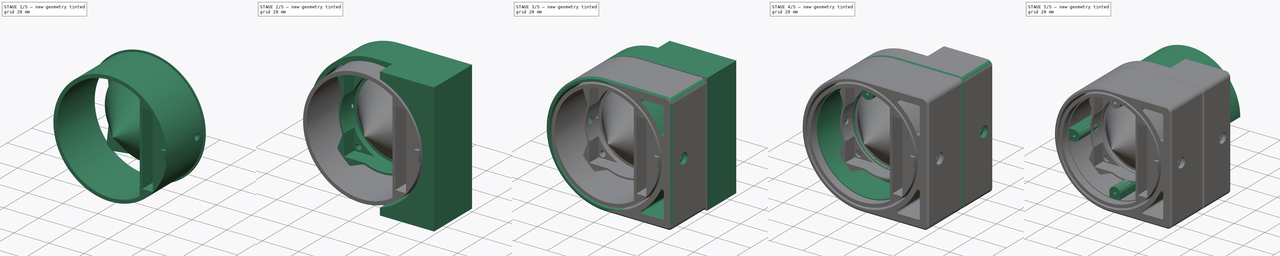
[diagram: build sequence overview — one tinted view per stage of 5, left to right]
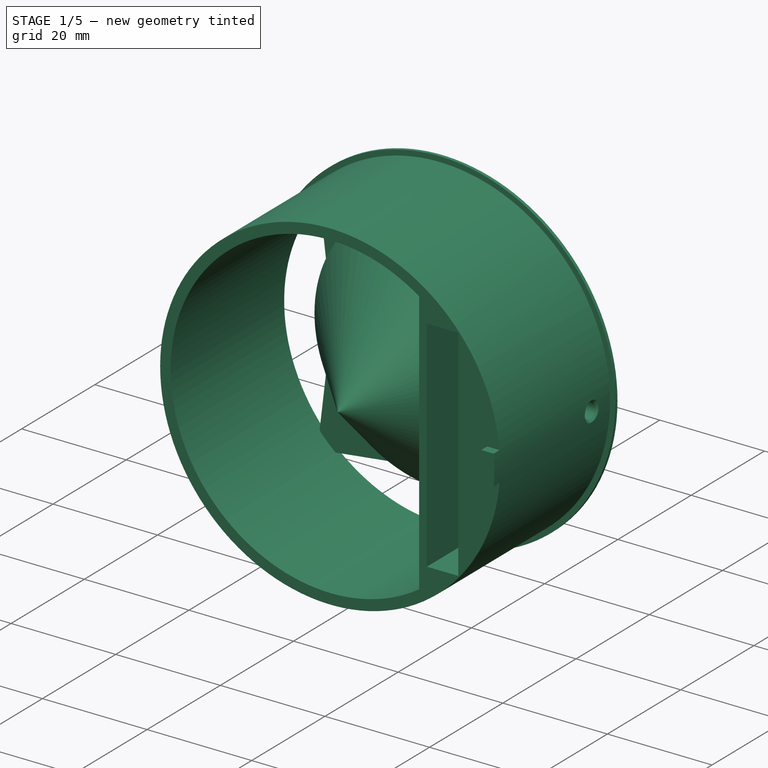
[diagram: stage 1 of 5 — iso view after this stage's code; geometry added in this stage tinted green]
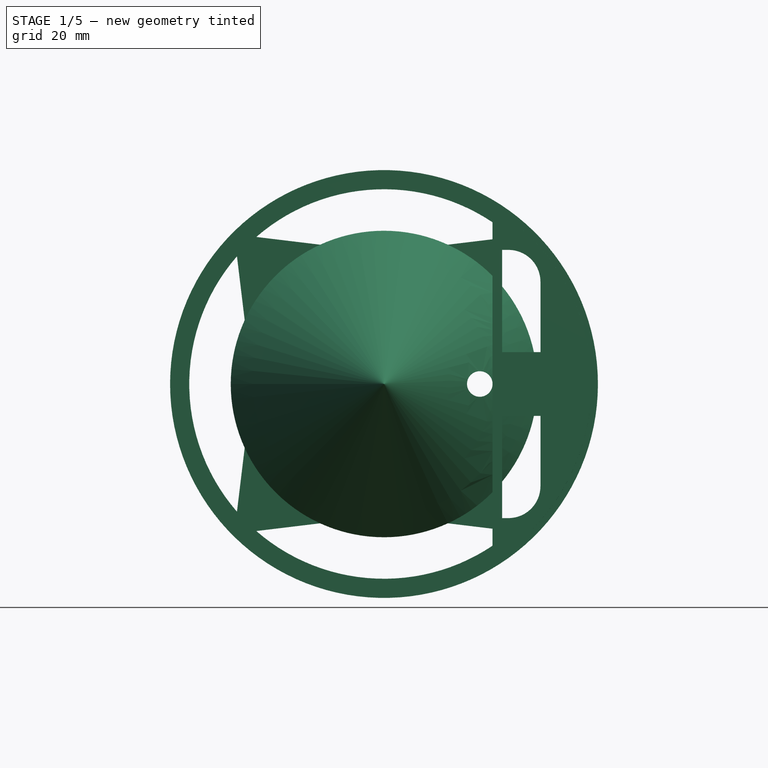
[diagram: stage 1 of 5 — front view after this stage's code; geometry added in this stage tinted green]
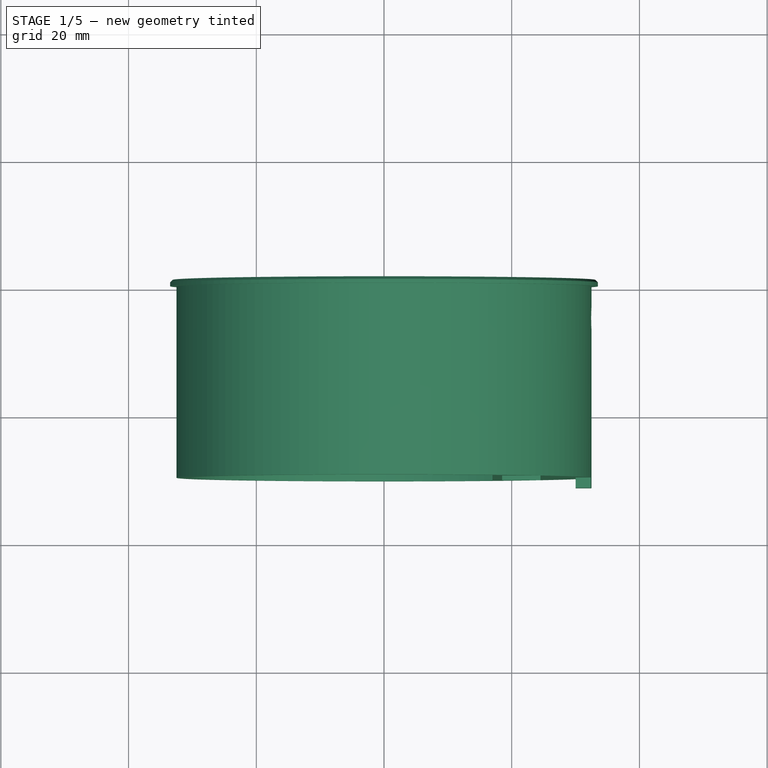
[diagram: stage 1 of 5 — top view after this stage's code; geometry added in this stage tinted green]
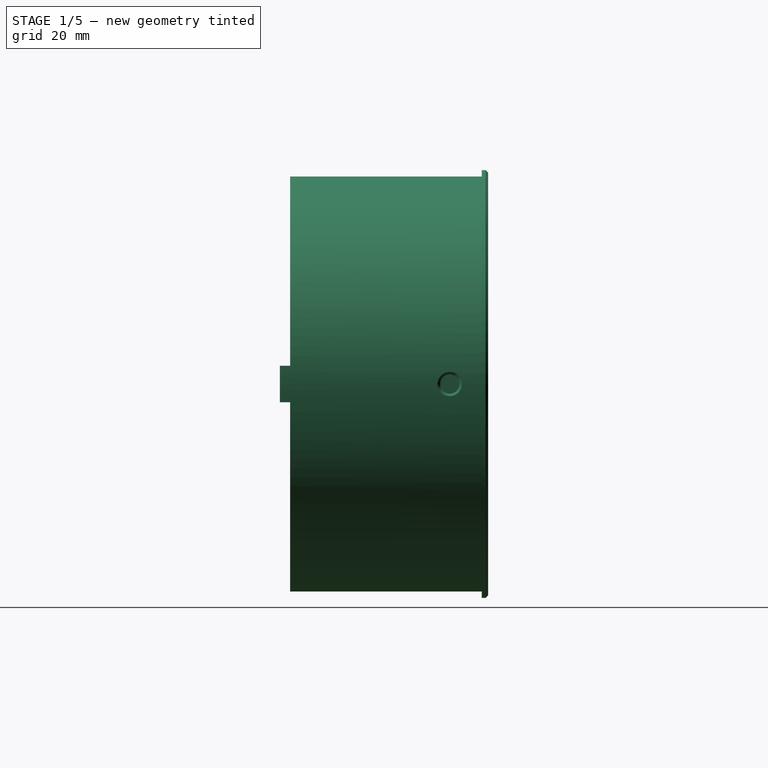
[diagram: stage 1 of 5 — right view after this stage's code; geometry added in this stage tinted green]
FCSTD DOCUMENT  (FreeCAD 0.21R33675 (Git))
Label: pringles-speaker
License: All rights reserved
LicenseURL: http://en.wikipedia.org/wiki/All_rights_reserved
objects: Sketcher::SketchObject×56, PartDesign::Pocket×40, PartDesign::Pad×19, PartDesign::Chamfer×10, PartDesign::Fillet×8, PartDesign::Body×7, PartDesign::Revolution×2, PartDesign::PolarPattern×2, Spreadsheet::Sheet×1, PartDesign::Plane×1
note: 224 computed .brp shape members not serialized (recipe doc carries the construction recipe); baked Part::Feature solids carry a one-line shape summary decoded from their .brp

FEATURE [Sketcher::SketchObject] Sketch049
  FullyConstrained = true
  MapMode = 5
  Placement = pos=(0,0,0) rot=(1,0,0;1.5708rad)
  Support = -> [XZ_Plane006]
  expr: Constraints[1] = <<args>>.inner_radius
  sketch-geometry (1):
    g0: Circle CenterX=0 CenterY=0 CenterZ=0 NormalX=0 NormalY=0 NormalZ=1 AngleXU=0 Radius=32.5
  constraints (2):
    c: Coincident(g0,g-1)
    c: Radius(g0) = 32.5
FEATURE [PartDesign::Pad] Pad011
  Direction = (0,-1,2e-16)
  Length = 30
  Length2 = 10
  Placement = pos=(0,0,0) rot=(1,0,0;1.5708rad)
  Profile = -> Sketch049
  ReferenceAxis = -> Sketch049 [N_Axis]
  Type = 0
FEATURE [Sketcher::SketchObject] Sketch050
  FullyConstrained = true
  MapMode = 5
  Placement = pos=(0,-30,1.33e-14) rot=(1,0,0;1.5708rad)
  Support = -> [Pad011]
  expr: Constraints[1] = <<args>>.inner_radius - 2
  sketch-geometry (1):
    g0: Circle CenterX=0 CenterY=0 CenterZ=0 NormalX=0 NormalY=0 NormalZ=1 AngleXU=0 Radius=30.5
  constraints (2):
    c: Coincident(g0,g-1)
    c: Radius(g0) = 30.5
FEATURE [PartDesign::Pocket] Pocket033
  BaseFeature = -> Pad011
  Direction = (0,1,-2e-16)
  Length = 5
  Length2 = 5
  Placement = pos=(0,0,0) rot=(1,0,0;1.5708rad)
  Profile = -> Sketch050
  ReferenceAxis = -> Sketch050 [N_Axis]
  Type = 1
FEATURE [Sketcher::SketchObject] Sketch051
  ExternalGeometry = -> [Pocket033]
  FullyConstrained = true
  MapMode = 5
  Placement = pos=(0,0,0) rot=(-1,0,0;1.5708rad)
  Support = -> [Pocket033]
  expr: Constraints[1] = <<args>>.body_radius
  sketch-geometry (1):
    g0: Circle CenterX=0 CenterY=0 CenterZ=0 NormalX=0 NormalY=0 NormalZ=1 AngleXU=0 Radius=33.5
  constraints (2):
    c: Coincident(g0,g-3)
    c: Radius(g0) = 33.5
FEATURE [PartDesign::Pad] Pad012
  BaseFeature = -> Pocket033
  Direction = (0,1,-2e-16)
  Length = 1
  Length2 = 10
  Placement = pos=(0,0,0) rot=(1,0,0;1.5708rad)
  Profile = -> Sketch051
  ReferenceAxis = -> Sketch051 [N_Axis]
  Type = 0
FEATURE [Sketcher::SketchObject] Sketch052
  FullyConstrained = true
  MapMode = 5
  Support = -> [XY_Plane006]
  sketch-geometry (3):
    g0: LineSegment StartX=-20 StartY=0 StartZ=0 EndX=0 EndY=-27.5 EndZ=0
    g1: LineSegment StartX=0 StartY=0 StartZ=0 EndX=0 EndY=-27.5 EndZ=0
    g2: LineSegment StartX=0 StartY=0 StartZ=0 EndX=-20 EndY=0 EndZ=0
  constraints (8):
    c: PointOnObject(g0,g-1)
    c: PointOnObject(g0,g-2)
    c: Coincident(g1,g-1)
    c: Coincident(g1,g0)
    c: Coincident(g2,g1)
    c: Coincident(g2,g0)
    c: DistanceX(g2,g2) = 20
    c: DistanceY(g1,g1) = 27.5
FEATURE [PartDesign::Revolution] Revolution
  Angle = 360
  Axis = (0,1,0)
  Base = (0,0,0)
  BaseFeature = -> Pad012
  Placement = pos=(0,0,0) rot=(1,0,0;1.5708rad)
  Profile = -> Sketch052
  ReferenceAxis = -> Sketch052 [V_Axis]
FEATURE [Sketcher::SketchObject] Sketch053
  FullyConstrained = true
  MapMode = 5
  Placement = pos=(0,1,-4e-16) rot=(-1,0,0;1.5708rad)
  Support = -> [Revolution]
  sketch-geometry (12):
    g0: ArcOfCircle CenterX=0 CenterY=0 CenterZ=0 NormalX=0 NormalY=0 NormalZ=1 AngleXU=0 Radius=30.5 StartAngle=2.42643 EndAngle=3.85675
    g1: ArcOfCircle CenterX=0 CenterY=0 CenterZ=0 NormalX=0 NormalY=0 NormalZ=1 AngleXU=0 Radius=30.5 StartAngle=3.99723 EndAngle=5.42755
    g2: ArcOfCircle CenterX=0 CenterY=0 CenterZ=0 NormalX=0 NormalY=0 NormalZ=1 AngleXU=0 Radius=30.5 StartAngle=0.855637 EndAngle=2.28596
    g3: ArcOfCircle CenterX=0 CenterY=0 CenterZ=0 NormalX=0 NormalY=0 NormalZ=1 AngleXU=0 Radius=24 StartAngle=1.14102 EndAngle=2.00057
    g4: ArcOfCircle CenterX=0 CenterY=0 CenterZ=0 NormalX=0 NormalY=0 NormalZ=1 AngleXU=0 Radius=24 StartAngle=2.71182 EndAngle=3.57137
    g5: ArcOfCircle CenterX=0 CenterY=0 CenterZ=0 NormalX=0 NormalY=0 NormalZ=1 AngleXU=0 Radius=24 StartAngle=4.28261 EndAngle=5.14216
    g6: LineSegment StartX=-23.0272 StartY=20 StartZ=0 EndX=-21.8174 EndY=10 EndZ=0
    g7: LineSegment StartX=-23.0272 StartY=-20 StartZ=0 EndX=-21.8174 EndY=-10 EndZ=0
    g8: LineSegment StartX=-20 StartY=-23.0272 StartZ=0 EndX=-10 EndY=-21.8174 EndZ=0
    g9: LineSegment StartX=10 StartY=-21.8174 StartZ=0 EndX=20 EndY=-23.0272 EndZ=0
    g10: LineSegment StartX=-20 StartY=23.0272 StartZ=0 EndX=-10 EndY=21.8174 EndZ=0
    g11: LineSegment StartX=10 StartY=21.8174 StartZ=0 EndX=20 EndY=23.0272 EndZ=0
  constraints (36):
    c: Coincident(g0,g-1)
    c: Coincident(g1,g0)
    c: Coincident(g2,g0)
    c: Equal(g1,g0)
    c: Equal(g0,g2)
    c: DistanceX(g2,g0) = 20
    c: DistanceX(g0,g2) = 20
    c: DistanceY(g0,g0) = 20
    c: DistanceY(g0,g0) = 20
    c: Vertical(g1,g2)
    c: Vertical(g1,g2)
    c: Radius(g2) = 30.5
    c: Coincident(g3,g0)
    c: Coincident(g4,g0)
    c: Coincident(g5,g0)
    c: Equal(g5,g4)
    c: Equal(g4,g3)
    c: Vertical(g3,g5)
    c: Vertical(g5,g3)
    c: DistanceX(g3,g0) = 10
    c: DistanceX(g0,g3) = 10
    c: DistanceY(g0,g4) = 10
    c: DistanceY(g4,g0) = 10
    c: Radius(g3) = 24
    c: Coincident(g6,g0)
    c: Coincident(g6,g4)
    c: Coincident(g7,g0)
    c: Coincident(g7,g4)
    c: Coincident(g8,g1)
    c: Coincident(g8,g5)
    c: Coincident(g9,g5)
    c: Coincident(g9,g1)
    c: Coincident(g10,g2)
    c: Coincident(g10,g3)
    c: Coincident(g11,g3)
    c: Coincident(g11,g2)
FEATURE [PartDesign::Pocket] Pocket034
  BaseFeature = -> Revolution
  Direction = (0,-1,2e-16)
  Length = 5
  Length2 = 5
  Placement = pos=(0,0,0) rot=(1,0,0;1.5708rad)
  Profile = -> Sketch053
  ReferenceAxis = -> Sketch053 [N_Axis]
  Type = 1
FEATURE [Sketcher::SketchObject] Sketch054
  ExternalGeometry = -> [Pocket034]
  FullyConstrained = true
  MapMode = 5
  Placement = pos=(0,1,-4e-16) rot=(-1,0,0;1.5708rad)
  Support = -> [Pocket034]
  sketch-geometry (4):
    g0: ArcOfCircle CenterX=0 CenterY=0 CenterZ=0 NormalX=0 NormalY=0 NormalZ=1 AngleXU=0 Radius=32.5 StartAngle=5.38985 EndAngle=7.17652
    g1: LineSegment StartX=20.3715 StartY=25.3229 StartZ=0 EndX=17 EndY=25.3229 EndZ=0
    g2: LineSegment StartX=20.3715 StartY=-25.3229 StartZ=0 EndX=17 EndY=-25.3229 EndZ=0
    g3: LineSegment StartX=17 StartY=-25.3229 StartZ=0 EndX=17 EndY=25.3229 EndZ=0
  constraints (12):
    c: Coincident(g0,g-3)
    c: Coincident(g1,g0)
    c: Horizontal(g1)
    c: Coincident(g2,g0)
    c: Horizontal(g2)
    c: Coincident(g3,g2)
    c: Coincident(g3,g1)
    c: Vertical(g3)
    c: Equal(g-3,g0)
    c: PointOnObject(g1,g-5)
    c: DistanceX(g1,g-5) = 3
    c: PointOnObject(g2,g-6)
FEATURE [PartDesign::Pad] Pad013
  BaseFeature = -> Pocket034
  Direction = (0,1,-2e-16)
  Length = 10
  Length2 = 10
  Placement = pos=(0,0,0) rot=(1,0,0;1.5708rad)
  Profile = -> Sketch054
  ReferenceAxis = -> Sketch054 [N_Axis]
  Refine = true
  Type = 3
  UpToFace = -> Pocket034 [Face17]
FEATURE [Sketcher::SketchObject] Sketch055
  FullyConstrained = false
  MapMode = 5
  Placement = pos=(0,1,-4e-16) rot=(-1,0,0;1.5708rad)
  Support = -> [Pad013]
  sketch-geometry (4):
    g0: LineSegment StartX=21.0464 StartY=21 StartZ=0 EndX=27.0464 EndY=21 EndZ=0
    g1: LineSegment StartX=27.0464 StartY=21 StartZ=0 EndX=27.0464 EndY=-21 EndZ=0
    g2: LineSegment StartX=27.0464 StartY=-21 StartZ=0 EndX=21.0464 EndY=-21 EndZ=0
    g3: LineSegment StartX=21.0464 StartY=-21 StartZ=0 EndX=21.0464 EndY=21 EndZ=0
  constraints (11):
    c: Coincident(g0,g1)
    c: Coincident(g1,g2)
    c: Coincident(g2,g3)
    c: Coincident(g3,g0)
    c: Horizontal(g0)
    c: Horizontal(g2)
    c: Vertical(g1)
    c: Vertical(g3)
    c: DistanceY(g3,g3) = 42
    c: DistanceY(g-1,g0) = 21
    c: DistanceX(g0,g0) = 6
FEATURE [Sketcher::SketchObject] Sketch056
  ExternalGeometry = -> [Pad013]
  FullyConstrained = true
  MapMode = 5
  Placement = pos=(0,1,-4e-16) rot=(-1,0,0;1.5708rad)
  Support = -> [Pad013]
  sketch-geometry (4):
    g0: LineSegment StartX=18.5 StartY=21 StartZ=0 EndX=24.5 EndY=21 EndZ=0
    g1: LineSegment StartX=24.5 StartY=21 StartZ=0 EndX=24.5 EndY=-21 EndZ=0
    g2: LineSegment StartX=24.5 StartY=-21 StartZ=0 EndX=18.5 EndY=-21 EndZ=0
    g3: LineSegment StartX=18.5 StartY=-21 StartZ=0 EndX=18.5 EndY=21 EndZ=0
  constraints (12):
    c: Coincident(g0,g1)
    c: Coincident(g1,g2)
    c: Coincident(g2,g3)
    c: Coincident(g3,g0)
    c: Horizontal(g0)
    c: Horizontal(g2)
    c: Vertical(g1)
    c: Vertical(g3)
    c: DistanceY(g3,g3) = 42
    c: DistanceY(g-1,g0) = 21
    c: DistanceX(g0,g0) = 6
    c: DistanceX(g-3,g0) = 1.5
FEATURE [PartDesign::Pocket] Pocket035
  BaseFeature = -> Pad013
  Direction = (0,-1,2e-16)
  Length = 5
  Length2 = 5
  Placement = pos=(0,0,0) rot=(1,0,0;1.5708rad)
  Profile = -> Sketch056
  ReferenceAxis = -> Sketch056 [N_Axis]
  Type = 1
FEATURE [Sketcher::SketchObject] Sketch057
  FullyConstrained = true
  MapMode = 5
  Placement = pos=(24.5,0,0) rot=(0.707107,0,-0.707107;3.14159rad)
  Support = -> [Pocket035]
  sketch-geometry (1):
    g0: Circle CenterX=0 CenterY=5 CenterZ=0 NormalX=0 NormalY=0 NormalZ=1 AngleXU=0 Radius=1.5
  constraints (3):
    c: PointOnObject(g0,g-2)
    c: Radius(g0) = 1.5
    c: DistanceY(g-1,g0) = 5
FEATURE [PartDesign::Pocket] Pocket036
  BaseFeature = -> Pocket035
  Direction = (1,0,-2e-16)
  Length = 5
  Length2 = 5
  Placement = pos=(0,0,0) rot=(1,0,0;1.5708rad)
  Profile = -> Sketch057
  ReferenceAxis = -> Sketch057 [N_Axis]
  Type = 1
FEATURE [Sketcher::SketchObject] Sketch058
  ExternalGeometry = -> [Pocket036]
  FullyConstrained = true
  MapMode = 5
  Placement = pos=(0,-30,1.33e-14) rot=(1,0,0;1.5708rad)
  Support = -> [Pocket036]
  sketch-geometry (4):
    g0: ArcOfCircle CenterX=0 CenterY=0 CenterZ=0 NormalX=0 NormalY=0 NormalZ=1 AngleXU=0 Radius=32.5 StartAngle=6.19538 EndAngle=6.37099
    g1: ArcOfCircle CenterX=0 CenterY=0 CenterZ=0 NormalX=0 NormalY=0 NormalZ=1 AngleXU=0 Radius=30.15 StartAngle=6.18852 EndAngle=6.37785
    g2: LineSegment StartX=30.015 StartY=2.85 StartZ=0 EndX=32.3748 EndY=2.85 EndZ=0
    g3: LineSegment StartX=30.015 StartY=-2.85 StartZ=0 EndX=32.3748 EndY=-2.85 EndZ=0
  constraints (13):
    c: Radius(g-4) = 32.5
    c: Coincident(g1,g-4)
    c: Coincident(g2,g1)
    c: Coincident(g2,g0)
    c: Coincident(g3,g1)
    c: Coincident(g3,g0)
    c: Horizontal(g2)
    c: Horizontal(g3)
    c: Equal(g-4,g0)
    c: Coincident(g0,g1)
    c: DistanceY(g1,g0) = 2.85
    c: Radius(g1) = 30.15
    c: DistanceY(g0,g0) = 2.85
FEATURE [PartDesign::Pad] Pad014
  BaseFeature = -> Pocket036
  Direction = (0,-1,2e-16)
  Length = 1.6
  Length2 = 10
  Placement = pos=(0,0,0) rot=(1,0,0;1.5708rad)
  Profile = -> Sketch058
  ReferenceAxis = -> Sketch058 [N_Axis]
  Type = 0
FEATURE [PartDesign::Fillet] Fillet005
  Base = -> Pad014 [Edge73,Edge74]
  BaseFeature = -> Pad014
  Placement = pos=(0,0,0) rot=(1,0,0;1.5708rad)
  Radius = 5
  SupportTransform = false
  UseAllEdges = false
FEATURE [Sketcher::SketchObject] Sketch060
  ExternalGeometry = -> [Fillet005]
  FullyConstrained = true
  MapMode = 5
  Placement = pos=(0,1,-4e-16) rot=(-1,0,0;1.5708rad)
  Support = -> [Fillet005]
  sketch-geometry (4):
    g0: LineSegment StartX=18.5 StartY=5 StartZ=0 EndX=24.5 EndY=5 EndZ=0
    g1: LineSegment StartX=24.5 StartY=5 StartZ=0 EndX=24.5 EndY=-5 EndZ=0
    g2: LineSegment StartX=24.5 StartY=-5 StartZ=0 EndX=18.5 EndY=-5 EndZ=0
    g3: LineSegment StartX=18.5 StartY=-5 StartZ=0 EndX=18.5 EndY=5 EndZ=0
  constraints (12):
    c: Coincident(g0,g1)
    c: Coincident(g1,g2)
    c: Coincident(g2,g3)
    c: Coincident(g3,g0)
    c: Horizontal(g0)
    c: Horizontal(g2)
    c: Vertical(g1)
    c: Vertical(g3)
    c: PointOnObject(g0,g-3)
    c: PointOnObject(g1,g-4)
    c: DistanceY(g-1,g0) = 5
    c: DistanceY(g2,g-1) = 5
FEATURE [PartDesign::Pad] Pad015
  BaseFeature = -> Fillet005
  Direction = (0,1,-2e-16)
  Length = 9
  Length2 = 10
  Placement = pos=(0,0,0) rot=(1,0,0;1.5708rad)
  Profile = -> Sketch060
  ReferenceAxis = -> Sketch060 [N_Axis]
  Reversed = true
  Type = 0
FEATURE [Sketcher::SketchObject] Sketch061
  FullyConstrained = true
  MapMode = 5
  Support = -> [XY_Plane006]
  sketch-geometry (3):
    g0: LineSegment StartX=-24 StartY=0 StartZ=0 EndX=0 EndY=-28 EndZ=0
    g1: LineSegment StartX=0 StartY=0 StartZ=0 EndX=0 EndY=-28 EndZ=0
    g2: LineSegment StartX=0 StartY=0 StartZ=0 EndX=-24 EndY=0 EndZ=0
  constraints (8):
    c: PointOnObject(g0,g-1)
    c: PointOnObject(g0,g-2)
    c: Coincident(g1,g-1)
    c: Coincident(g1,g0)
    c: Coincident(g2,g1)
    c: Coincident(g2,g0)
    c: DistanceX(g2,g2) = 24
    c: DistanceY(g1,g1) = 28
FEATURE [PartDesign::Revolution] Revolution001
  Angle = 360
  Axis = (0,1,0)
  Base = (0,0,0)
  BaseFeature = -> Pad015
  Placement = pos=(0,0,0) rot=(1,0,0;1.5708rad)
  Profile = -> Sketch061
  ReferenceAxis = -> Sketch061 [V_Axis]
FEATURE [Sketcher::SketchObject] Sketch062
  ExternalGeometry = -> [Revolution001]
  FullyConstrained = true
  MapMode = 5
  Placement = pos=(0,-30,1.33e-14) rot=(1,0,0;1.5708rad)
  Support = -> [Revolution001]
  sketch-geometry (4):
    g0: LineSegment StartX=18.5 StartY=21 StartZ=0 EndX=24.5 EndY=21 EndZ=0
    g1: LineSegment StartX=24.5 StartY=21 StartZ=0 EndX=24.5 EndY=-21 EndZ=0
    g2: LineSegment StartX=24.5 StartY=-21 StartZ=0 EndX=18.5 EndY=-21 EndZ=0
    g3: LineSegment StartX=18.5 StartY=-21 StartZ=0 EndX=18.5 EndY=21 EndZ=0
  constraints (11):
    c: Coincident(g0,g1)
    c: Coincident(g1,g2)
    c: Coincident(g2,g3)
    c: Coincident(g3,g0)
    c: Horizontal(g0)
    c: Horizontal(g2)
    c: Vertical(g1)
    c: Vertical(g3)
    c: Coincident(g0,g-3)
    c: Horizontal(g-4,g1)
    c: Vertical(g-5,g1)
FEATURE [PartDesign::Pocket] Pocket038
  BaseFeature = -> Revolution001
  Direction = (0,1,-2e-16)
  Length = 22
  Length2 = 5
  Placement = pos=(0,0,0) rot=(1,0,0;1.5708rad)
  Profile = -> Sketch062
  ReferenceAxis = -> Sketch062 [N_Axis]
  Type = 0
FEATURE [PartDesign::Chamfer] Chamfer007
  Angle = 45
  Base = -> Pocket038 [Edge11,Edge136]
  BaseFeature = -> Pocket038
  ChamferType = 0
  FlipDirection = false
  Placement = pos=(0,0,0) rot=(1,0,0;1.5708rad)
  Size = 0.4
  Size2 = 1
  SupportTransform = false
  UseAllEdges = false
FEATURE [PartDesign::Body] Body005  label="speaker-mount"
  Group = -> [Sketch045,Pad010,Sketch046,Pocket030,Sketch047,Pocket031,Sketch048,Pocket032,Sketch059,Pocket037,Chamfer006,Pocket039,Sketch063,Pad016,PolarPattern,Chamfer008,Sketch066,Pocket041,Chamfer010]
  Origin = -> Origin005
  Placement = pos=(0,90,0) rot=(0,0,1;0rad)
  Tip = -> Chamfer010
FEATURE [Sketcher::SketchObject] Sketch067
  FullyConstrained = true
  MapMode = 5
  Placement = pos=(0,1,-4e-16) rot=(-1,0,0;1.5708rad)
  Support = -> [Chamfer007]
  sketch-geometry (1):
    g0: Circle CenterX=15 CenterY=0 CenterZ=0 NormalX=0 NormalY=0 NormalZ=1 AngleXU=0 Radius=2
  constraints (3):
    c: PointOnObject(g0,g-1)
    c: Radius(g0) = 2
    c: DistanceX(g-1,g0) = 15
FEATURE [PartDesign::Pocket] Pocket042
  BaseFeature = -> Chamfer007
  Direction = (0,-1,2e-16)
  Length = 5
  Length2 = 5
  Placement = pos=(0,0,0) rot=(1,0,0;1.5708rad)
  Profile = -> Sketch067
  ReferenceAxis = -> Sketch067 [N_Axis]
  Type = 1
FEATURE [PartDesign::Chamfer] Chamfer011
  Angle = 45
  Base = -> Pocket042 [Edge26]
  BaseFeature = -> Pocket042
  ChamferType = 0
  FlipDirection = false
  Placement = pos=(0,0,0) rot=(1,0,0;1.5708rad)
  Size = 0.4
  Size2 = 1
  SupportTransform = false
  UseAllEdges = false
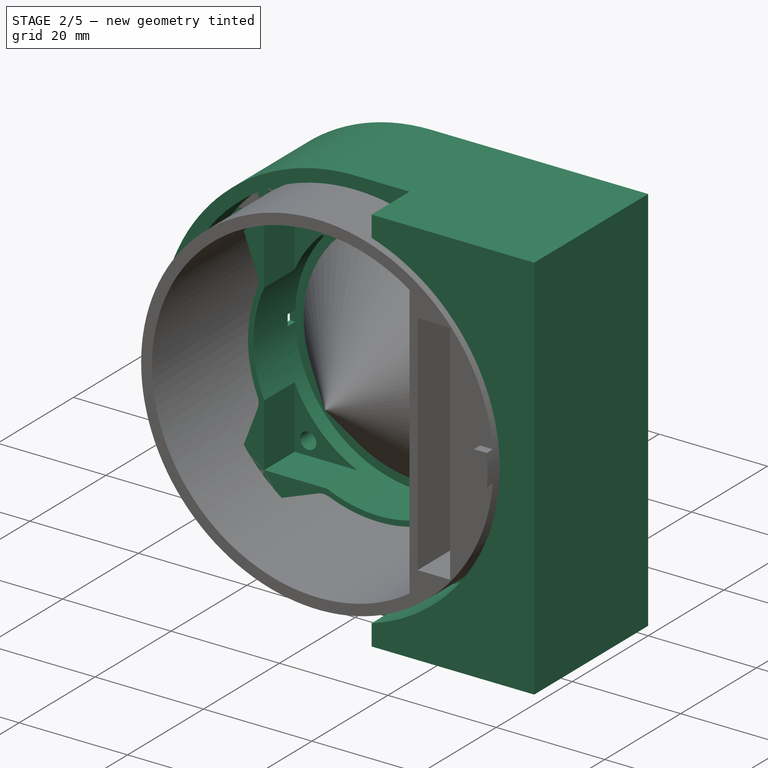
[diagram: stage 2 of 5 — iso view after this stage's code; geometry added in this stage tinted green]
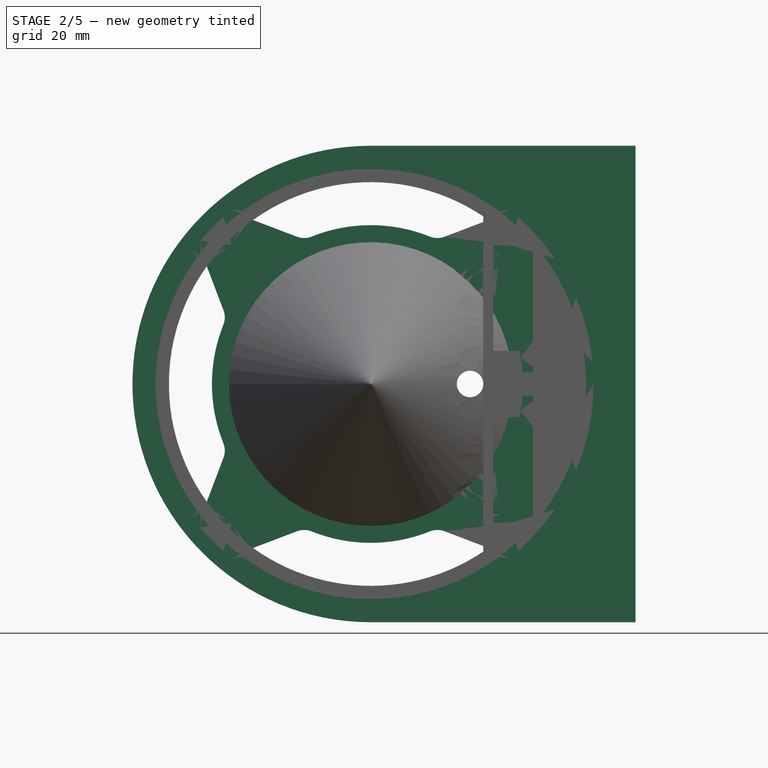
[diagram: stage 2 of 5 — front view after this stage's code; geometry added in this stage tinted green]
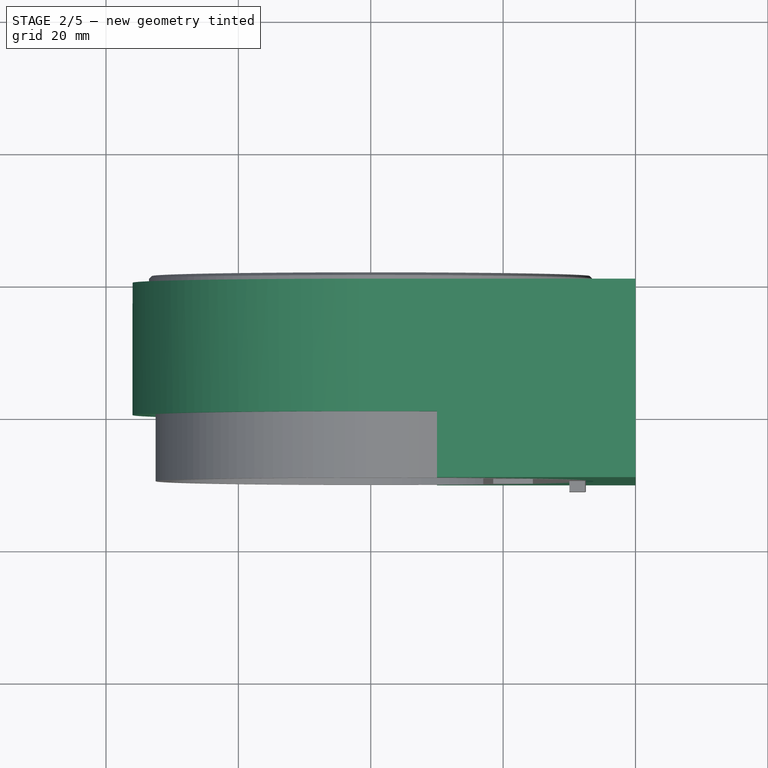
[diagram: stage 2 of 5 — top view after this stage's code; geometry added in this stage tinted green]
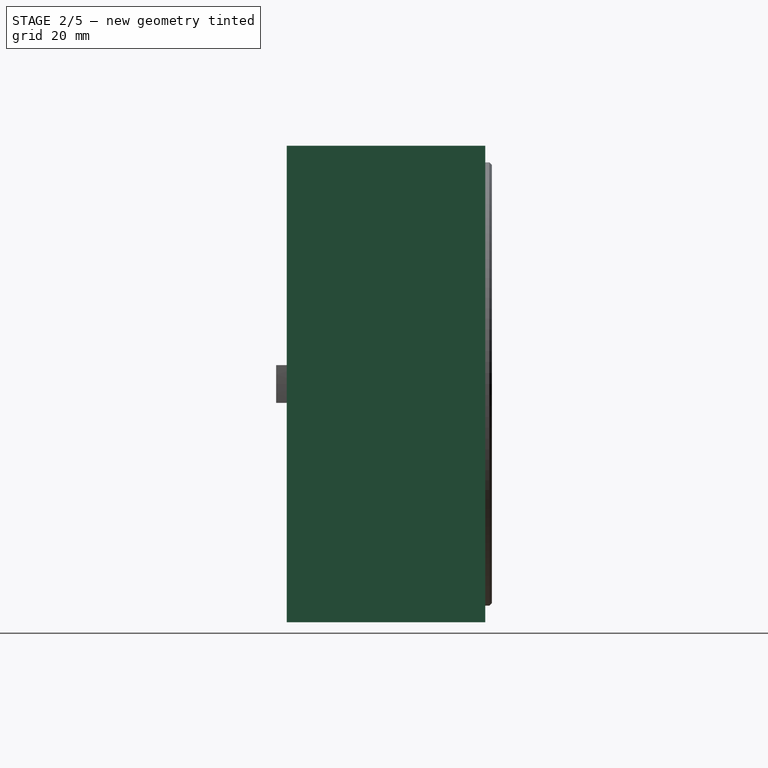
[diagram: stage 2 of 5 — right view after this stage's code; geometry added in this stage tinted green]
FEATURE [Sketcher::SketchObject] Sketch028
  FullyConstrained = true
  MapMode = 5
  Placement = pos=(0,0,0) rot=(1,0,0;1.5708rad)
  Support = -> [XZ_Plane004]
  sketch-geometry (4):
    g0: ArcOfCircle CenterX=0 CenterY=0 CenterZ=0 NormalX=0 NormalY=0 NormalZ=1 AngleXU=0 Radius=36 StartAngle=1.5708 EndAngle=4.71239
    g1: LineSegment StartX=2.2e-15 StartY=36 StartZ=0 EndX=40 EndY=36 EndZ=0
    g2: LineSegment StartX=-6.6e-15 StartY=-36 StartZ=0 EndX=40 EndY=-36 EndZ=0
    g3: LineSegment StartX=40 StartY=-36 StartZ=0 EndX=40 EndY=36 EndZ=0
  constraints (12):
    c: Coincident(g0,g-1)
    c: PointOnObject(g0,g-2)
    c: PointOnObject(g0,g-2)
    c: Coincident(g1,g0)
    c: Horizontal(g1)
    c: Coincident(g2,g0)
    c: Horizontal(g2)
    c: Coincident(g3,g2)
    c: Coincident(g3,g1)
    c: Vertical(g3)
    c: Radius(g0) = 36
    c: DistanceX(g1,g1) = 40
FEATURE [PartDesign::Pad] Pad008
  Direction = (0,-1,2e-16)
  Length = 30
  Length2 = 10
  Placement = pos=(0,0,0) rot=(1,0,0;1.5708rad)
  Profile = -> Sketch028
  ReferenceAxis = -> Sketch028 [N_Axis]
  Type = 0
FEATURE [Sketcher::SketchObject] Sketch029
  FullyConstrained = true
  MapMode = 5
  Placement = pos=(0,0,0) rot=(-1,0,0;1.5708rad)
  Support = -> [Pad008]
  sketch-geometry (1):
    g0: Circle CenterX=0 CenterY=0 CenterZ=0 NormalX=0 NormalY=0 NormalZ=1 AngleXU=0 Radius=20
  constraints (2):
    c: Coincident(g0,g-1)
    c: Radius(g0) = 20
FEATURE [PartDesign::Pocket] Pocket014
  BaseFeature = -> Pad008
  Direction = (0,-1,2e-16)
  Length = 3
  Length2 = 5
  Placement = pos=(0,0,0) rot=(1,0,0;1.5708rad)
  Profile = -> Sketch029
  ReferenceAxis = -> Sketch029 [N_Axis]
  Type = 0
FEATURE [Sketcher::SketchObject] Sketch030
  FullyConstrained = true
  MapMode = 5
  Placement = pos=(0,-3,1.3e-15) rot=(-1,0,0;1.5708rad)
  Support = -> [Pocket014]
  sketch-geometry (1):
    g0: Circle CenterX=0 CenterY=0 CenterZ=0 NormalX=0 NormalY=0 NormalZ=1 AngleXU=0 Radius=23
  constraints (2):
    c: Coincident(g0,g-1)
    c: Radius(g0) = 23
FEATURE [PartDesign::Pocket] Pocket015
  BaseFeature = -> Pocket014
  Direction = (0,-1,2e-16)
  Length = 5
  Length2 = 5
  Placement = pos=(0,0,0) rot=(1,0,0;1.5708rad)
  Profile = -> Sketch030
  ReferenceAxis = -> Sketch030 [N_Axis]
  Type = 1
FEATURE [Sketcher::SketchObject] Sketch031
  FullyConstrained = true
  MapMode = 5
  Placement = pos=(0,-30,1.33e-14) rot=(1,0,0;1.5708rad)
  Support = -> [Pocket015]
  sketch-geometry (4):
    g0: LineSegment StartX=-21 StartY=21 StartZ=0 EndX=21 EndY=21 EndZ=0
    g1: LineSegment StartX=21 StartY=21 StartZ=0 EndX=21 EndY=-21 EndZ=0
    g2: LineSegment StartX=21 StartY=-21 StartZ=0 EndX=-21 EndY=-21 EndZ=0
    g3: LineSegment StartX=-21 StartY=-21 StartZ=0 EndX=-21 EndY=21 EndZ=0
  constraints (12):
    c: Coincident(g0,g1)
    c: Coincident(g1,g2)
    c: Coincident(g2,g3)
    c: Coincident(g3,g0)
    c: Horizontal(g0)
    c: Horizontal(g2)
    c: Vertical(g1)
    c: Vertical(g3)
    c: DistanceY(g3,g3) = 42
    c: Equal(g3,g0)
    c: DistanceX(g0,g-1) = 21
    c: DistanceY(g-1,g0) = 21
FEATURE [PartDesign::Pocket] Pocket016
  BaseFeature = -> Pocket015
  Direction = (0,1,-2e-16)
  Length = 24
  Length2 = 5
  Placement = pos=(0,0,0) rot=(1,0,0;1.5708rad)
  Profile = -> Sketch031
  ReferenceAxis = -> Sketch031 [N_Axis]
  Type = 0
FEATURE [Sketcher::SketchObject] Sketch032
  FullyConstrained = true
  MapMode = 5
  Placement = pos=(0,-6,2.4e-15) rot=(1,0,0;1.5708rad)
  Support = -> [Pocket016]
  sketch-geometry (8):
    g0: LineSegment StartX=-18.5 StartY=18.5 StartZ=0 EndX=18.5 EndY=18.5 EndZ=0
    g1: LineSegment StartX=18.5 StartY=18.5 StartZ=0 EndX=18.5 EndY=-18.5 EndZ=0
    g2: LineSegment StartX=18.5 StartY=-18.5 StartZ=0 EndX=-18.5 EndY=-18.5 EndZ=0
    g3: LineSegment StartX=-18.5 StartY=-18.5 StartZ=0 EndX=-18.5 EndY=18.5 EndZ=0
    g4: Circle CenterX=-18.5 CenterY=18.5 CenterZ=0 NormalX=0 NormalY=0 NormalZ=1 AngleXU=0 Radius=1.5
    g5: Circle CenterX=18.5 CenterY=18.5 CenterZ=0 NormalX=0 NormalY=0 NormalZ=1 AngleXU=0 Radius=1.5
    g6: Circle CenterX=-18.5 CenterY=-18.5 CenterZ=0 NormalX=0 NormalY=0 NormalZ=1 AngleXU=0 Radius=1.5
    g7: Circle CenterX=18.5 CenterY=-18.5 CenterZ=0 NormalX=0 NormalY=0 NormalZ=1 AngleXU=0 Radius=1.5
  constraints (20):
    c: Coincident(g0,g1)
    c: Coincident(g1,g2)
    c: Coincident(g2,g3)
    c: Coincident(g3,g0)
    c: Horizontal(g0)
    c: Horizontal(g2)
    c: Vertical(g1)
    c: Vertical(g3)
    c: Equal(g2,g3)
    c: DistanceX(g0,g0) = 37
    c: DistanceX(g0,g-1) = 18.5
    c: DistanceY(g2,g-1) = 18.5
    c: Coincident(g4,g0)
    c: Coincident(g5,g0)
    c: Coincident(g6,g2)
    c: Coincident(g7,g1)
    c: Equal(g6,g7)
    c: Equal(g7,g5)
    c: Equal(g5,g4)
    c: Radius(g5) = 1.5
FEATURE [PartDesign::Pocket] Pocket017
  BaseFeature = -> Pocket016
  Direction = (0,1,-2e-16)
  Length = 5
  Length2 = 5
  Placement = pos=(0,0,0) rot=(1,0,0;1.5708rad)
  Profile = -> Sketch032
  ReferenceAxis = -> Sketch032 [N_Axis]
  Type = 0
FEATURE [Sketcher::SketchObject] Sketch033
  FullyConstrained = true
  MapMode = 5
  Placement = pos=(0,-30,1.33e-14) rot=(1,0,0;1.5708rad)
  Support = -> [Pocket017]
  expr: Constraints[1] = <<args>>.body_radius + 0.15
  sketch-geometry (1):
    g0: Circle CenterX=0 CenterY=0 CenterZ=0 NormalX=0 NormalY=0 NormalZ=1 AngleXU=0 Radius=33.65
  constraints (2):
    c: Coincident(g0,g-1)
    c: Radius(g0) = 33.65
FEATURE [PartDesign::Pocket] Pocket018
  BaseFeature = -> Pocket017
  Direction = (0,1,-2e-16)
  Length = 16
  Length2 = 5
  Placement = pos=(0,0,0) rot=(1,0,0;1.5708rad)
  Profile = -> Sketch033
  ReferenceAxis = -> Sketch033 [N_Axis]
  Type = 0
FEATURE [Sketcher::SketchObject] Sketch034
  ExternalGeometry = -> [Pocket018]
  FullyConstrained = true
  MapMode = 5
  Placement = pos=(0,-30,1.33e-14) rot=(1,0,0;1.5708rad)
  Support = -> [Pocket018]
  sketch-geometry (4):
    g0: LineSegment StartX=10 StartY=36 StartZ=0 EndX=-36 EndY=36 EndZ=0
    g1: LineSegment StartX=-36 StartY=36 StartZ=0 EndX=-36 EndY=-36 EndZ=0
    g2: LineSegment StartX=-36 StartY=-36 StartZ=0 EndX=10 EndY=-36 EndZ=0
    g3: LineSegment StartX=10 StartY=-36 StartZ=0 EndX=10 EndY=36 EndZ=0
  constraints (12):
    c: Coincident(g0,g1)
    c: Coincident(g1,g2)
    c: Coincident(g2,g3)
    c: Coincident(g3,g0)
    c: Horizontal(g0)
    c: Horizontal(g2)
    c: Vertical(g1)
    c: Vertical(g3)
    c: PointOnObject(g0,g-3)
    c: Horizontal(g2,g-4)
    c: DistanceX(g0,g-1) = 36
    c: DistanceX(g2,g-4) = 30
FEATURE [PartDesign::Pocket] Pocket019
  BaseFeature = -> Pocket018
  Direction = (0,1,-2e-16)
  Length = 10
  Length2 = 5
  Placement = pos=(0,0,0) rot=(1,0,0;1.5708rad)
  Profile = -> Sketch034
  ReferenceAxis = -> Sketch034 [N_Axis]
  Type = 0
FEATURE [Sketcher::SketchObject] Sketch035
  FullyConstrained = true
  MapMode = 5
  Placement = pos=(0,-14,6.5e-15) rot=(1,0,0;1.5708rad)
  Support = -> [Pocket019]
  sketch-geometry (12):
    g0: ArcOfCircle CenterX=0 CenterY=0 CenterZ=0 NormalX=0 NormalY=0 NormalZ=1 AngleXU=0 Radius=32.5 StartAngle=2.47872 EndAngle=3.80447
    g1: ArcOfCircle CenterX=0 CenterY=0 CenterZ=0 NormalX=0 NormalY=0 NormalZ=1 AngleXU=0 Radius=24 StartAngle=2.71182 EndAngle=3.57137
    g2: ArcOfCircle CenterX=0 CenterY=0 CenterZ=0 NormalX=0 NormalY=0 NormalZ=1 AngleXU=0 Radius=32.5 StartAngle=0.907923 EndAngle=2.23367
    g3: ArcOfCircle CenterX=0 CenterY=0 CenterZ=0 NormalX=0 NormalY=0 NormalZ=1 AngleXU=0 Radius=32.5 StartAngle=4.04952 EndAngle=5.37526
    g4: ArcOfCircle CenterX=0 CenterY=0 CenterZ=0 NormalX=0 NormalY=0 NormalZ=1 AngleXU=0 Radius=24 StartAngle=1.14102 EndAngle=2.00057
    g5: ArcOfCircle CenterX=0 CenterY=0 CenterZ=0 NormalX=0 NormalY=0 NormalZ=1 AngleXU=0 Radius=24 StartAngle=4.28261 EndAngle=5.14216
    g6: LineSegment StartX=-25.6174 StartY=20 StartZ=0 EndX=-21.8174 EndY=10 EndZ=0
    g7: LineSegment StartX=-21.8174 StartY=-10 StartZ=0 EndX=-25.6174 EndY=-20 EndZ=0
    g8: LineSegment StartX=-20 StartY=-25.6174 StartZ=0 EndX=-10 EndY=-21.8174 EndZ=0
    g9: LineSegment StartX=10 StartY=-21.8174 StartZ=0 EndX=20 EndY=-25.6174 EndZ=0
    g10: LineSegment StartX=-10 StartY=21.8174 StartZ=0 EndX=-20 EndY=25.6174 EndZ=0
    g11: LineSegment StartX=10 StartY=21.8174 StartZ=0 EndX=20 EndY=25.6174 EndZ=0
  constraints (36):
    c: Coincident(g0,g-1)
    c: Coincident(g1,g0)
    c: Coincident(g2,g0)
    c: Coincident(g3,g0)
    c: Coincident(g4,g0)
    c: Coincident(g5,g0)
    c: Equal(g5,g1)
    c: Equal(g1,g4)
    c: Equal(g3,g0)
    c: Equal(g0,g2)
    c: Radius(g2) = 32.5
    c: Coincident(g6,g0)
    c: Coincident(g6,g1)
    c: Coincident(g7,g1)
    c: Coincident(g7,g0)
    c: Coincident(g8,g3)
    c: Coincident(g8,g5)
    c: Coincident(g9,g5)
    c: Coincident(g9,g3)
    c: Coincident(g10,g4)
    c: Coincident(g10,g2)
    c: Coincident(g11,g4)
    c: Coincident(g11,g2)
    c: DistanceX(g2,g0) = 20
    c: DistanceX(g0,g2) = 20
    c: DistanceY(g0,g0) = 20
    c: DistanceY(g0,g0) = 20
    c: Vertical(g3,g2)
    c: Radius(g4) = 24
    c: Vertical(g3,g2)
    c: Vertical(g5,g4)
    c: Vertical(g5,g4)
    c: DistanceX(g4,g0) = 10
    c: DistanceX(g0,g4) = 10
    c: DistanceY(g0,g1) = 10
    c: DistanceY(g1,g0) = 10
FEATURE [PartDesign::Pocket] Pocket020
  BaseFeature = -> Pocket019
  Direction = (0,1,-2e-16)
  Length = 5
  Length2 = 5
  Placement = pos=(0,0,0) rot=(1,0,0;1.5708rad)
  Profile = -> Sketch035
  ReferenceAxis = -> Sketch035 [N_Axis]
  Refine = true
  Type = 1
FEATURE [PartDesign::Fillet] Fillet001
  Base = -> Pocket020 [Edge56,Edge54,Edge43,Edge44,Edge36,Edge35]
  BaseFeature = -> Pocket020
  Placement = pos=(0,0,0) rot=(1,0,0;1.5708rad)
  Radius = 3
  SupportTransform = false
  UseAllEdges = false
FEATURE [PartDesign::Fillet] Fillet002
  Base = -> Fillet001 [Edge34,Edge32,Edge65,Edge69,Edge59,Edge61]
  BaseFeature = -> Fillet001
  Placement = pos=(0,0,0) rot=(1,0,0;1.5708rad)
  Radius = 1
  SupportTransform = false
  UseAllEdges = false
FEATURE [Sketcher::SketchObject] Sketch036
  FullyConstrained = true
  MapMode = 5
  Placement = pos=(0,-3,1.3e-15) rot=(1,0,0;1.5708rad)
  Support = -> [Fillet002]
  sketch-geometry (4):
    g0: LineSegment StartX=-25 StartY=1 StartZ=0 EndX=-20 EndY=1 EndZ=0
    g1: LineSegment StartX=-20 StartY=1 StartZ=0 EndX=-20 EndY=-1 EndZ=0
    g2: LineSegment StartX=-20 StartY=-1 StartZ=0 EndX=-25 EndY=-1 EndZ=0
    g3: LineSegment StartX=-25 StartY=-1 StartZ=0 EndX=-25 EndY=1 EndZ=0
  constraints (12):
    c: Coincident(g0,g1)
    c: Coincident(g1,g2)
    c: Coincident(g2,g3)
    c: Coincident(g3,g0)
    c: Horizontal(g0)
    c: Horizontal(g2)
    c: Vertical(g1)
    c: Vertical(g3)
    c: DistanceX(g0,g0) = 5
    c: DistanceY(g3,g3) = 2
    c: DistanceY(g-1,g0) = 1
    c: DistanceX(g1,g-1) = 20
FEATURE [PartDesign::Pocket] Pocket021
  BaseFeature = -> Fillet002
  Direction = (0,1,-2e-16)
  Length = 2
  Length2 = 5
  Placement = pos=(0,0,0) rot=(1,0,0;1.5708rad)
  Profile = -> Sketch036
  ReferenceAxis = -> Sketch036 [N_Axis]
  Reversed = true
  Type = 0
FEATURE [Sketcher::SketchObject] Sketch037
  FullyConstrained = true
  MapMode = 5
  Placement = pos=(0,-14,6.5e-15) rot=(1,0,0;1.5708rad)
  Support = -> [Pocket021]
  sketch-geometry (4):
    g0: LineSegment StartX=22 StartY=1.75 StartZ=0 EndX=26 EndY=1.75 EndZ=0
    g1: LineSegment StartX=26 StartY=1.75 StartZ=0 EndX=26 EndY=-1.75 EndZ=0
    g2: LineSegment StartX=26 StartY=-1.75 StartZ=0 EndX=22 EndY=-1.75 EndZ=0
    g3: LineSegment StartX=22 StartY=-1.75 StartZ=0 EndX=22 EndY=1.75 EndZ=0
  constraints (12):
    c: Coincident(g0,g1)
    c: Coincident(g1,g2)
    c: Coincident(g2,g3)
    c: Coincident(g3,g0)
    c: Horizontal(g0)
    c: Horizontal(g2)
    c: Vertical(g1)
    c: Vertical(g3)
    c: DistanceY(g1,g1) = 3.5
    c: DistanceY(g2,g-1) = 1.75
    c: DistanceX(g-1,g2) = 22
    c: DistanceX(g0,g0) = 4
FEATURE [PartDesign::Pocket] Pocket022
  BaseFeature = -> Pocket021
  Direction = (0,1,-2e-16)
  Length = 0
  Length2 = 5
  Placement = pos=(0,0,0) rot=(1,0,0;1.5708rad)
  Profile = -> Sketch037
  ReferenceAxis = -> Sketch037 [N_Axis]
  Refine = true
  Type = 3
  UpToFace = -> Pocket021 [Face40]
FEATURE [Sketcher::SketchObject] Sketch038
  FullyConstrained = true
  MapMode = 5
  Placement = pos=(0,-14,6.5e-15) rot=(1,0,0;1.5708rad)
  Support = -> [Pocket022]
  sketch-geometry (4):
    g0: LineSegment StartX=25.5 StartY=7.75 StartZ=0 EndX=29.25 EndY=7.75 EndZ=0
    g1: LineSegment StartX=29.25 StartY=7.75 StartZ=0 EndX=29.25 EndY=-7.75 EndZ=0
    g2: LineSegment StartX=29.25 StartY=-7.75 StartZ=0 EndX=25.5 EndY=-7.75 EndZ=0
    g3: LineSegment StartX=25.5 StartY=-7.75 StartZ=0 EndX=25.5 EndY=7.75 EndZ=0
  constraints (12):
    c: Coincident(g0,g1)
    c: Coincident(g1,g2)
    c: Coincident(g2,g3)
    c: Coincident(g3,g0)
    c: Horizontal(g0)
    c: Horizontal(g2)
    c: Vertical(g1)
    c: Vertical(g3)
    c: DistanceY(g3,g3) = 15.5
    c: DistanceY(g-1,g0) = 7.75
    c: DistanceX(g0,g0) = 3.75
    c: DistanceX(g-1,g0) = 25.5
FEATURE [PartDesign::Pocket] Pocket023
  BaseFeature = -> Pocket022
  Direction = (0,1,-2e-16)
  Length = 5
  Length2 = 5
  Placement = pos=(0,0,0) rot=(1,0,0;1.5708rad)
  Profile = -> Sketch038
  ReferenceAxis = -> Sketch038 [N_Axis]
  Type = 1
FEATURE [Sketcher::SketchObject] Sketch039
  ExternalGeometry = -> [Pocket023]
  FullyConstrained = true
  MapMode = 5
  Placement = pos=(0,0,0) rot=(-1,0,0;1.5708rad)
  Support = -> [Pocket023]
  sketch-geometry (8):
    g0: LineSegment StartX=25.5 StartY=7.75 StartZ=0 EndX=29.25 EndY=7.75 EndZ=0
    g1: LineSegment StartX=29.25 StartY=7.75 StartZ=0 EndX=29.25 EndY=5.5 EndZ=0
    g2: LineSegment StartX=29.25 StartY=5.5 StartZ=0 EndX=25.5 EndY=5.5 EndZ=0
    g3: LineSegment StartX=25.5 StartY=5.5 StartZ=0 EndX=25.5 EndY=7.75 EndZ=0
    g4: LineSegment StartX=25.5 StartY=-7.75 StartZ=0 EndX=29.25 EndY=-7.75 EndZ=0
    g5: LineSegment StartX=29.25 StartY=-7.75 StartZ=0 EndX=29.25 EndY=-5.5 EndZ=0
    g6: LineSegment StartX=29.25 StartY=-5.5 StartZ=0 EndX=25.5 EndY=-5.5 EndZ=0
    g7: LineSegment StartX=25.5 StartY=-5.5 StartZ=0 EndX=25.5 EndY=-7.75 EndZ=0
  constraints (22):
    c: Coincident(g0,g1)
    c: Coincident(g1,g2)
    c: Coincident(g2,g3)
    c: Coincident(g3,g0)
    c: Horizontal(g0)
    c: Horizontal(g2)
    c: Vertical(g1)
    c: Vertical(g3)
    c: Coincident(g0,g-3)
    c: PointOnObject(g1,g-4)
    c: Coincident(g4,g5)
    c: Coincident(g5,g6)
    c: Coincident(g6,g7)
    c: Coincident(g7,g4)
    c: Horizontal(g4)
    c: Horizontal(g6)
    c: Vertical(g5)
    c: Vertical(g7)
    c: Coincident(g4,g-3)
    c: PointOnObject(g5,g-4)
    c: Equal(g7,g3)
    c: DistanceY(g6,g2) = 11
FEATURE [PartDesign::Pad] Pad009
  BaseFeature = -> Pocket023
  Direction = (0,1,-2e-16)
  Length = 4
  Length2 = 10
  Placement = pos=(0,0,0) rot=(1,0,0;1.5708rad)
  Profile = -> Sketch039
  ReferenceAxis = -> Sketch039 [N_Axis]
  Reversed = true
  Type = 0
FEATURE [PartDesign::Body] Body004  label="front-ring"
  Group = -> [Sketch028,Pad008,Sketch029,Pocket014,Sketch030,Pocket015,Sketch031,Pocket016,Sketch032,Pocket017,Sketch033,Pocket018,Sketch034,Pocket019,Sketch035,Pocket020,Fillet001,Fillet002,Sketch036,Pocket021,Sketch037,Pocket022,Sketch038,Pocket023,Sketch039,Pad009,Sketch040,Pocket024,Sketch041,Pocket025,Sketch042,Pocket026,Sketch043,Pocket027,Fillet003,Pocket046,Sketch071,Pocket047,Pad019,Fillet009,+2 more]
  Origin = -> Origin004
  Placement = pos=(0,184,0) rot=(0,0,1;0rad)
  Tip = -> Chamfer015
FEATURE [PartDesign::Pad] Pad020
  BaseFeature = -> Chamfer011
  Direction = (0,1,0)
  Length = 1
  Length2 = 10
  Placement = pos=(0,0,0) rot=(1,0,0;1.5708rad)
  Profile = -> Chamfer011 [Face35]
  Type = 0
FEATURE [PartDesign::Pad] Pad021
  BaseFeature = -> Pad020
  Direction = (0,1,0)
  Length = 1
  Length2 = 10
  Placement = pos=(0,0,0) rot=(1,0,0;1.5708rad)
  Profile = -> Pad020 [Face42]
  Type = 0
FEATURE [PartDesign::Body] Body006  label="corn"
  Group = -> [Sketch049,Pad011,Sketch050,Pocket033,Sketch051,Pad012,Sketch052,Revolution,Sketch053,Pocket034,Sketch054,Pad013,Sketch055,Sketch056,Pocket035,Sketch057,Pocket036,Sketch058,Pad014,Fillet005,Sketch060,Pad015,Sketch061,Revolution001,Sketch062,Pocket038,Chamfer007,Sketch067,Pocket042,Chamfer011,Pad020,Pad021]
  Origin = -> Origin006
  Placement = pos=(0,140,0) rot=(0,0,1;0rad)
  Tip = -> Pad021
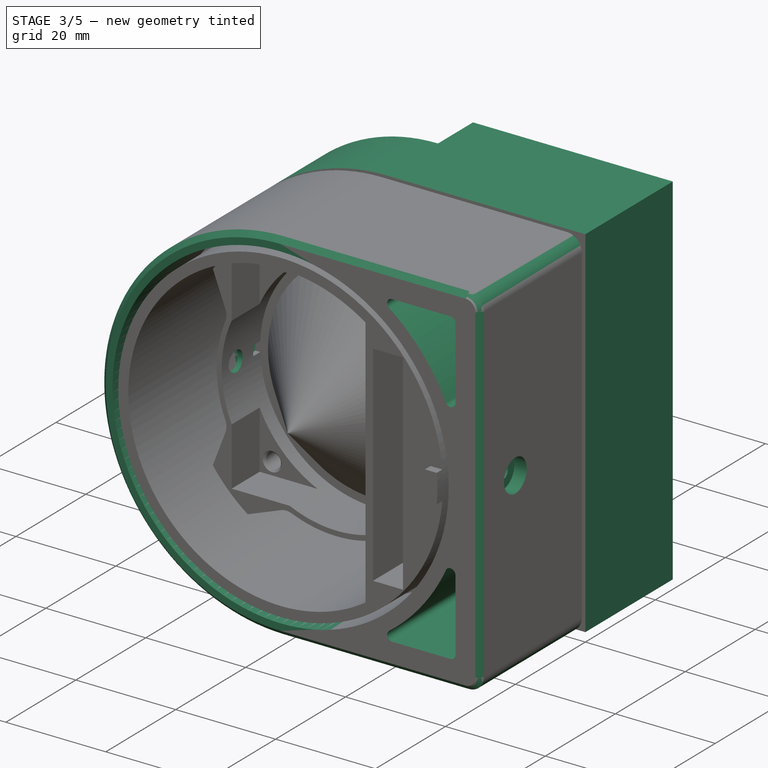
[diagram: stage 3 of 5 — iso view after this stage's code; geometry added in this stage tinted green]
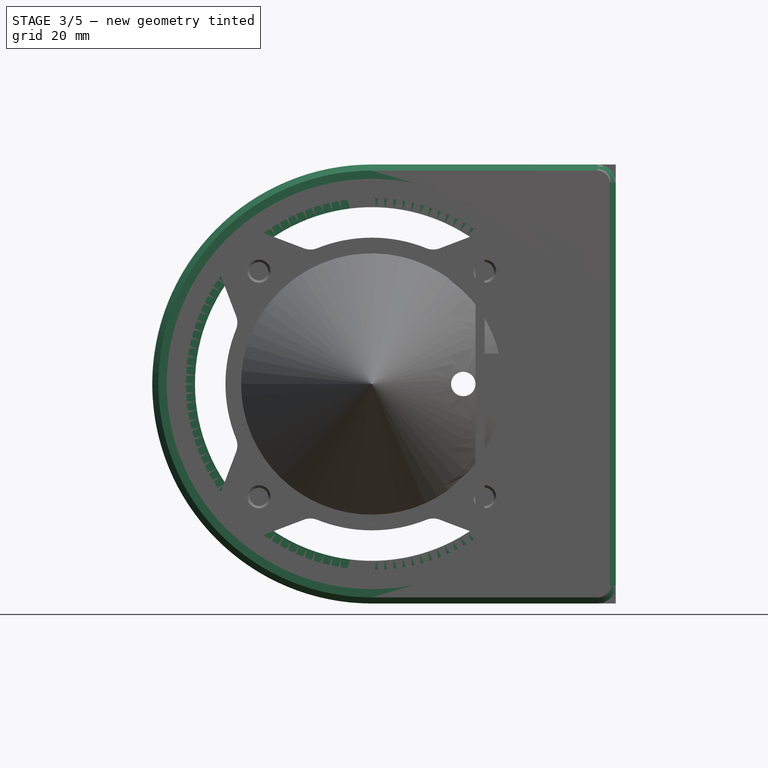
[diagram: stage 3 of 5 — front view after this stage's code; geometry added in this stage tinted green]
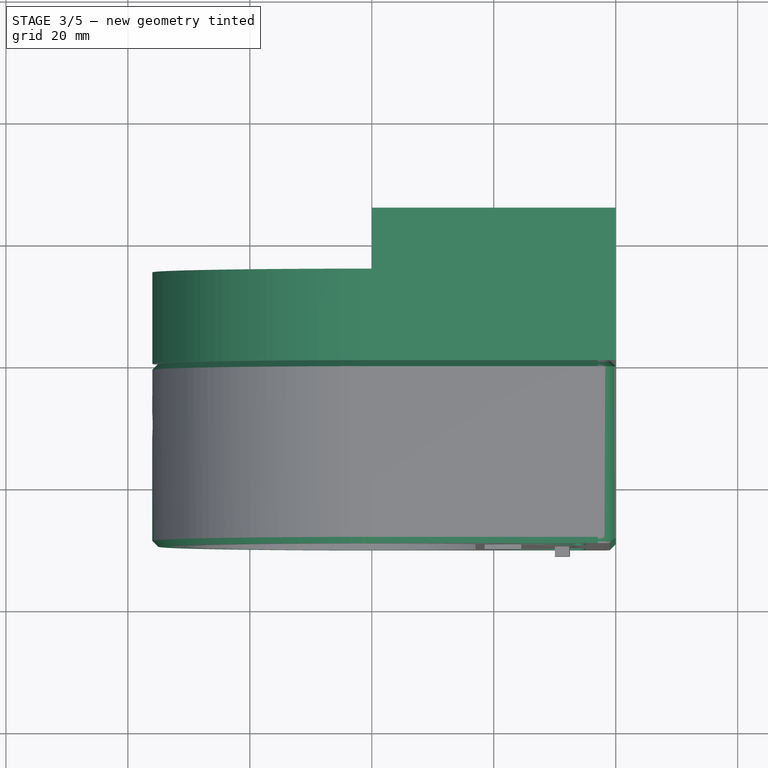
[diagram: stage 3 of 5 — top view after this stage's code; geometry added in this stage tinted green]
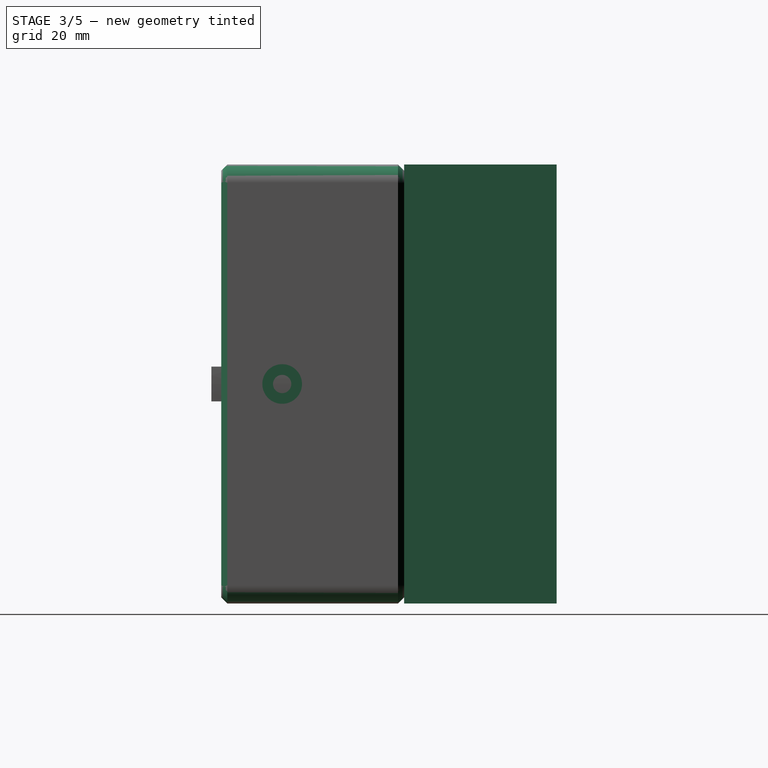
[diagram: stage 3 of 5 — right view after this stage's code; geometry added in this stage tinted green]
FEATURE [Sketcher::SketchObject] Sketch
  FullyConstrained = true
  MapMode = 5
  Placement = pos=(0,0,0) rot=(1,0,0;1.5708rad)
  Support = -> [XZ_Plane]
  sketch-geometry (1):
    g0: Circle CenterX=0 CenterY=0 CenterZ=0 NormalX=0 NormalY=0 NormalZ=1 AngleXU=0 Radius=36
  constraints (2):
    c: Coincident(g0,g-1)
    c: Radius(g0) = 36
FEATURE [PartDesign::Pad] Pad
  Direction = (0,-1,-2e-16)
  Length = 15
  Length2 = 100
  Placement = pos=(0,0,0) rot=(1,0,0;1.5708rad)
  Profile = -> Sketch
  Reversed = true
  Type = 0
FEATURE [Sketcher::SketchObject] Sketch021
  FullyConstrained = true
  MapMode = 5
  Placement = pos=(0,15,0) rot=(-1,0,0;1.5708rad)
  Support = -> [Pad]
  expr: Constraints[1] = <<args>>.body_radius + 0.15
  sketch-geometry (1):
    g0: Circle CenterX=0 CenterY=0 CenterZ=0 NormalX=0 NormalY=0 NormalZ=1 AngleXU=0 Radius=33.65
  constraints (2):
    c: Coincident(g0,g-1)
    c: Radius(g0) = 33.65
FEATURE [PartDesign::Pocket] Pocket
  BaseFeature = -> Pad
  Direction = (0,-1,-2e-16)
  Length = 13
  Length2 = 100
  Placement = pos=(0,0,0) rot=(1,0,0;1.5708rad)
  Profile = -> Sketch021
  Type = 0
FEATURE [Sketcher::SketchObject] Sketch022
  FullyConstrained = true
  MapMode = 5
  Placement = pos=(0,2,0) rot=(-1,0,0;1.5708rad)
  Support = -> [Pocket]
  sketch-geometry (1):
    g0: Circle CenterX=0 CenterY=0 CenterZ=0 NormalX=0 NormalY=0 NormalZ=1 AngleXU=0 Radius=29
  constraints (2):
    c: Coincident(g0,g-1)
    c: Radius(g0) = 29
FEATURE [PartDesign::Pocket] Pocket009
  BaseFeature = -> Pocket
  Direction = (0,-1,-2e-16)
  Length = 5
  Length2 = 100
  Placement = pos=(0,0,0) rot=(1,0,0;1.5708rad)
  Profile = -> Sketch022
  Type = 1
FEATURE [Sketcher::SketchObject] Sketch023
  ExternalGeometry = -> [Pocket009]
  FullyConstrained = true
  MapMode = 5
  Placement = pos=(0,0,0) rot=(1,0,0;1.5708rad)
  Support = -> [Pocket009]
  sketch-geometry (8):
    g0: ArcOfCircle CenterX=0 CenterY=0 CenterZ=0 NormalX=0 NormalY=0 NormalZ=1 AngleXU=0 Radius=33.65 StartAngle=4.71239 EndAngle=7.85398
    g1: LineSegment StartX=1.03e-14 StartY=33.65 StartZ=0 EndX=0 EndY=36 EndZ=0
    g2: LineSegment StartX=1.03e-14 StartY=-33.65 StartZ=0 EndX=1.03e-14 EndY=-36 EndZ=0
    g3: LineSegment StartX=0 StartY=36 StartZ=0 EndX=40 EndY=36 EndZ=0
    g4: LineSegment StartX=1.03e-14 StartY=-36 StartZ=0 EndX=40 EndY=-36 EndZ=0
    g5: LineSegment StartX=40 StartY=-36 StartZ=0 EndX=40 EndY=36 EndZ=0
    g6: GeomPoint X=0 Y=36 Z=0
    g7: GeomPoint X=0 Y=-36 Z=0
  constraints (22):
    c: PointOnObject(g0,g-2)
    c: Vertical(g0,g0)
    c: Equal(g0,g-4)
    c: Coincident(g1,g0)
    c: PointOnObject(g1,g-2)
    c: Coincident(g2,g0)
    c: Vertical(g2)
    c: Coincident(g3,g1)
    c: Horizontal(g3)
    c: Coincident(g4,g2)
    c: Horizontal(g4)
    c: Coincident(g5,g4)
    c: Coincident(g5,g3)
    c: Vertical(g5)
    c: PointOnObject(g6,g-3)
    c: PointOnObject(g7,g-3)
    c: Vertical(g7,g-1)
    c: Vertical(g-1,g6)
    c: Coincident(g-1,g0)
    c: Horizontal(g6,g1)
    c: Horizontal(g7,g2)
    c: DistanceX(g3,g3) = 40
FEATURE [PartDesign::Pad] Pad007
  BaseFeature = -> Pocket009
  Direction = (0,-1,-2e-16)
  Length = 25
  Length2 = 100
  Placement = pos=(0,0,0) rot=(1,0,0;1.5708rad)
  Profile = -> Sketch023
  Reversed = true
  Type = 0
FEATURE [Sketcher::SketchObject] Sketch040
  FullyConstrained = true
  MapMode = 5
  Placement = pos=(29.25,0,0) rot=(0.707107,0,-0.707107;3.14159rad)
  Support = -> [Pad009]
  sketch-geometry (1):
    g0: Circle CenterX=0 CenterY=10 CenterZ=0 NormalX=0 NormalY=0 NormalZ=1 AngleXU=0 Radius=1
  constraints (3):
    c: PointOnObject(g0,g-2)
    c: DistanceY(g-1,g0) = 10
    c: Radius(g0) = 1
FEATURE [PartDesign::Pocket] Pocket024
  BaseFeature = -> Pad009
  Direction = (1,0,-2e-16)
  Length = 5
  Length2 = 5
  Placement = pos=(0,0,0) rot=(1,0,0;1.5708rad)
  Profile = -> Sketch040
  ReferenceAxis = -> Sketch040 [N_Axis]
  Type = 0
FEATURE [Sketcher::SketchObject] Sketch041
  ExternalGeometry = -> [Pocket024]
  FullyConstrained = true
  MapMode = 5
  Placement = pos=(29.25,0,0) rot=(0.707107,0,-0.707107;3.14159rad)
  Support = -> [Pocket024]
  sketch-geometry (1):
    g0: Circle CenterX=0 CenterY=10 CenterZ=0 NormalX=0 NormalY=0 NormalZ=1 AngleXU=0 Radius=2
  constraints (2):
    c: Radius(g0) = 2
    c: Coincident(g0,g-3)
FEATURE [PartDesign::Pocket] Pocket025
  BaseFeature = -> Pocket024
  Direction = (1,0,-2e-16)
  Length = 5
  Length2 = 5
  Placement = pos=(0,0,0) rot=(1,0,0;1.5708rad)
  Profile = -> Sketch041
  ReferenceAxis = -> Sketch041 [N_Axis]
  Reversed = true
  Type = 1
FEATURE [Sketcher::SketchObject] Sketch042
  ExternalGeometry = -> [Pocket025]
  FullyConstrained = true
  MapMode = 5
  Placement = pos=(40,0,0) rot=(0.707107,0,0.707107;3.14159rad)
  Support = -> [Pocket025]
  sketch-geometry (1):
    g0: Circle CenterX=0 CenterY=20 CenterZ=0 NormalX=0 NormalY=0 NormalZ=1 AngleXU=0 Radius=1.5
  constraints (3):
    c: PointOnObject(g0,g-2)
    c: Radius(g0) = 1.5
    c: DistanceY(g0,g-3) = 10
FEATURE [PartDesign::Pocket] Pocket026
  BaseFeature = -> Pocket025
  Direction = (-1,0,2e-16)
  Length = 10
  Length2 = 5
  Placement = pos=(0,0,0) rot=(1,0,0;1.5708rad)
  Profile = -> Sketch042
  ReferenceAxis = -> Sketch042 [N_Axis]
  Type = 0
FEATURE [Sketcher::SketchObject] Sketch043
  ExternalGeometry = -> [Pocket026]
  FullyConstrained = true
  MapMode = 5
  Placement = pos=(40,0,0) rot=(0.707107,0,0.707107;3.14159rad)
  Support = -> [Pocket026]
  sketch-geometry (1):
    g0: Circle CenterX=0 CenterY=20 CenterZ=0 NormalX=0 NormalY=0 NormalZ=1 AngleXU=0 Radius=3.25
  constraints (2):
    c: Radius(g0) = 3.25
    c: Coincident(g0,g-3)
FEATURE [PartDesign::Pocket] Pocket027
  BaseFeature = -> Pocket026
  Direction = (-1,0,2e-16)
  Length = 2.5
  Length2 = 5
  Placement = pos=(0,0,0) rot=(1,0,0;1.5708rad)
  Profile = -> Sketch043
  ReferenceAxis = -> Sketch043 [N_Axis]
  Type = 0
FEATURE [PartDesign::Fillet] Fillet003
  Base = -> Pocket027 [Edge47,Edge43]
  BaseFeature = -> Pocket027
  Placement = pos=(0,0,0) rot=(1,0,0;1.5708rad)
  Radius = 3
  SupportTransform = false
  UseAllEdges = false
FEATURE [PartDesign::Body] Body  label="back-ring"
  Group = -> [Sketch,Pad,Sketch021,Pocket,Sketch022,Pocket009,Sketch023,Pad007,Sketch024,Pocket010,Sketch025,Pocket011,Sketch026,Pocket012,Fillet,Pocket044,Sketch069,Pocket045,Fillet008,Chamfer]
  Origin = -> Origin
  Placement = pos=(0,-60,0) rot=(0,0,1;0rad)
  Tip = -> Chamfer
FEATURE [Sketcher::SketchObject] Sketch070
  FullyConstrained = true
  MapMode = 5
  Placement = pos=(0,0,0) rot=(1,0,0;1.5708rad)
  Support = -> [XZ_Plane008]
  expr: Constraints[1] = <<args>>.inner_radius
  sketch-geometry (2):
    g0: Circle CenterX=0 CenterY=0 CenterZ=0 NormalX=0 NormalY=0 NormalZ=1 AngleXU=0 Radius=32.5
    g1: Circle CenterX=0 CenterY=0 CenterZ=0 NormalX=0 NormalY=0 NormalZ=1 AngleXU=0 Radius=30.5
  constraints (4):
    c: Coincident(g0,g-1)
    c: Radius(g0) = 32.5
    c: Coincident(g1,g0)
    c: Radius(g1) = 30.5
FEATURE [PartDesign::Pad] Pad018
  Direction = (0,-1,2e-16)
  Length = 7
  Length2 = 10
  Placement = pos=(0,0,0) rot=(1,0,0;1.5708rad)
  Profile = -> Sketch070
  ReferenceAxis = -> Sketch070 [N_Axis]
  Type = 0
FEATURE [PartDesign::Chamfer] Chamfer013
  Angle = 45
  Base = -> Pad018 [Edge3,Edge6,Edge5,Edge2]
  BaseFeature = -> Pad018
  ChamferType = 0
  FlipDirection = false
  Placement = pos=(0,0,0) rot=(1,0,0;1.5708rad)
  Size = 0.4
  Size2 = 1
  SupportTransform = false
  UseAllEdges = false
FEATURE [PartDesign::Body] Body008  label="spacer-ring"
  Group = -> [Sketch070,Pad018,Chamfer013]
  Origin = -> Origin008
  Placement = pos=(0,34,0) rot=(0,0,1;0rad)
  Tip = -> Chamfer013
FEATURE [PartDesign::Pocket] Pocket046
  BaseFeature = -> Fillet003
  Direction = (1,0,0)
  Length = 5
  Length2 = 5
  Placement = pos=(0,0,0) rot=(1,0,0;1.5708rad)
  Profile = -> Fillet003 [Face84]
  Type = 0
FEATURE [Sketcher::SketchObject] Sketch071
  ExternalGeometry = -> [Pocket046]
  FullyConstrained = true
  MapMode = 5
  Placement = pos=(0,0,0) rot=(-1,0,0;1.5708rad)
  Support = -> [Pocket046]
  sketch-geometry (6):
    g0: ArcOfCircle CenterX=0 CenterY=0 CenterZ=0 NormalX=0 NormalY=0 NormalZ=1 AngleXU=0 Radius=36.4005 StartAngle=0.2783 EndAngle=1.0191
    g1: ArcOfCircle CenterX=0 CenterY=0 CenterZ=0 NormalX=0 NormalY=0 NormalZ=1 AngleXU=0 Radius=36.4005 StartAngle=5.26409 EndAngle=6.00489
    g2: LineSegment StartX=35 StartY=10 StartZ=0 EndX=35 EndY=31 EndZ=0
    g3: LineSegment StartX=19.0788 StartY=31 StartZ=0 EndX=35 EndY=31 EndZ=0
    g4: LineSegment StartX=35 StartY=-10 StartZ=0 EndX=35 EndY=-31 EndZ=0
    g5: LineSegment StartX=35 StartY=-31 StartZ=0 EndX=19.0788 EndY=-31 EndZ=0
  constraints (18):
    c: Coincident(g0,g-1)
    c: Coincident(g1,g0)
    c: Vertical(g1,g0)
    c: Vertical(g1,g0)
    c: Coincident(g2,g0)
    c: Vertical(g2)
    c: Coincident(g3,g0)
    c: Coincident(g3,g2)
    c: Horizontal(g3)
    c: Coincident(g4,g1)
    c: Vertical(g4)
    c: Coincident(g5,g4)
    c: Coincident(g5,g1)
    c: Horizontal(g5)
    c: DistanceY(g-5,g4) = 5
    c: DistanceY(g1,g0) = 10
    c: DistanceY(g0,g0) = 10
    c: DistanceX(g0,g-4) = 5
FEATURE [PartDesign::Pocket] Pocket047
  BaseFeature = -> Pocket046
  Direction = (0,-1,2e-16)
  Length = 5
  Length2 = 5
  Placement = pos=(0,0,0) rot=(1,0,0;1.5708rad)
  Profile = -> Sketch071
  ReferenceAxis = -> Sketch071 [N_Axis]
  Type = 1
FEATURE [PartDesign::Pad] Pad019
  BaseFeature = -> Pocket047
  Direction = (0,-1,2e-16)
  Length = 10
  Length2 = 10
  Placement = pos=(0,0,0) rot=(1,0,0;1.5708rad)
  Profile = -> Pocket047 [Face44]
  Refine = true
  Type = 0
FEATURE [PartDesign::Fillet] Fillet009
  Base = -> Pad019 [Edge230,Edge234,Edge232,Edge226,Edge228,Edge224]
  BaseFeature = -> Pad019
  Placement = pos=(0,0,0) rot=(1,0,0;1.5708rad)
  Radius = 1
  SupportTransform = false
  UseAllEdges = false
FEATURE [PartDesign::Chamfer] Chamfer014
  Angle = 45
  Base = -> Fillet009 [Edge12,Edge32,Edge16,Edge24,Edge5,Edge45,Edge73]
  BaseFeature = -> Fillet009
  ChamferType = 0
  FlipDirection = false
  Placement = pos=(0,0,0) rot=(1,0,0;1.5708rad)
  Size = 1
  Size2 = 1
  SupportTransform = false
  UseAllEdges = false
FEATURE [PartDesign::Chamfer] Chamfer015
  Angle = 45
  Base = -> Chamfer014 [Edge9,Edge10,Edge8,Edge11,Edge351,Edge352,Edge353,Edge350]
  BaseFeature = -> Chamfer014
  ChamferType = 0
  FlipDirection = false
  Placement = pos=(0,0,0) rot=(1,0,0;1.5708rad)
  Size = 0.4
  Size2 = 1
  SupportTransform = false
  UseAllEdges = false
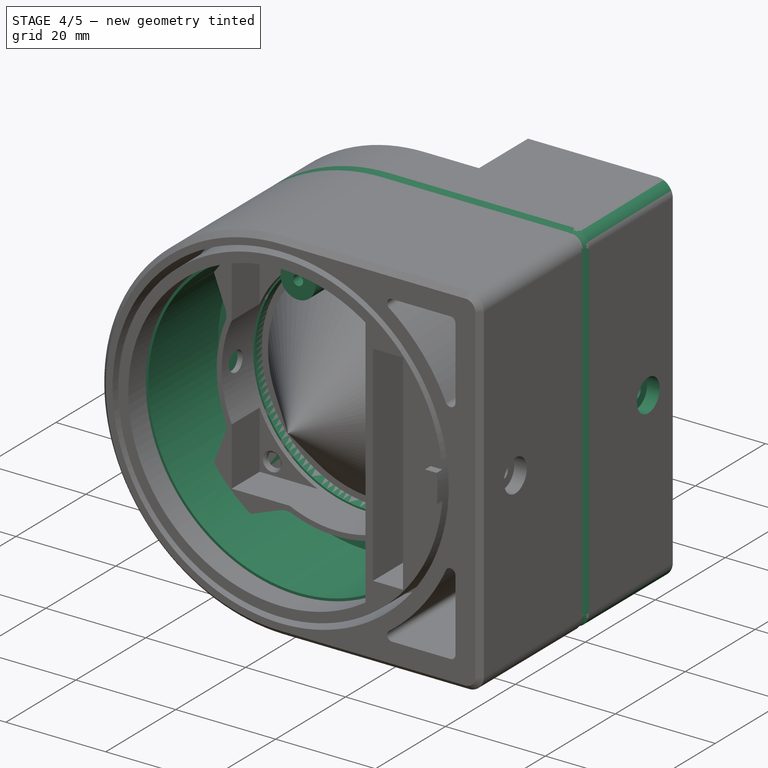
[diagram: stage 4 of 5 — iso view after this stage's code; geometry added in this stage tinted green]
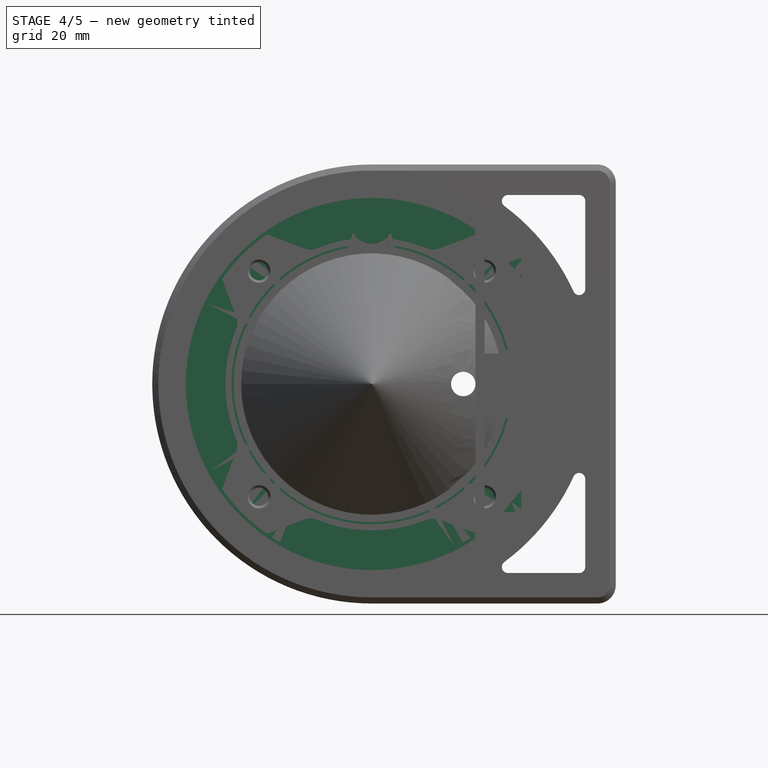
[diagram: stage 4 of 5 — front view after this stage's code; geometry added in this stage tinted green]
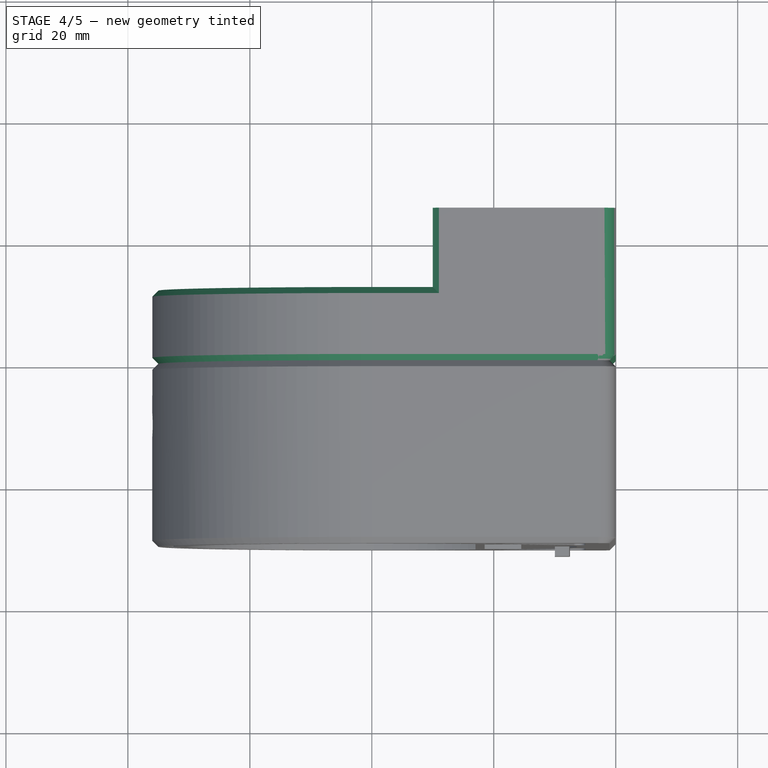
[diagram: stage 4 of 5 — top view after this stage's code; geometry added in this stage tinted green]
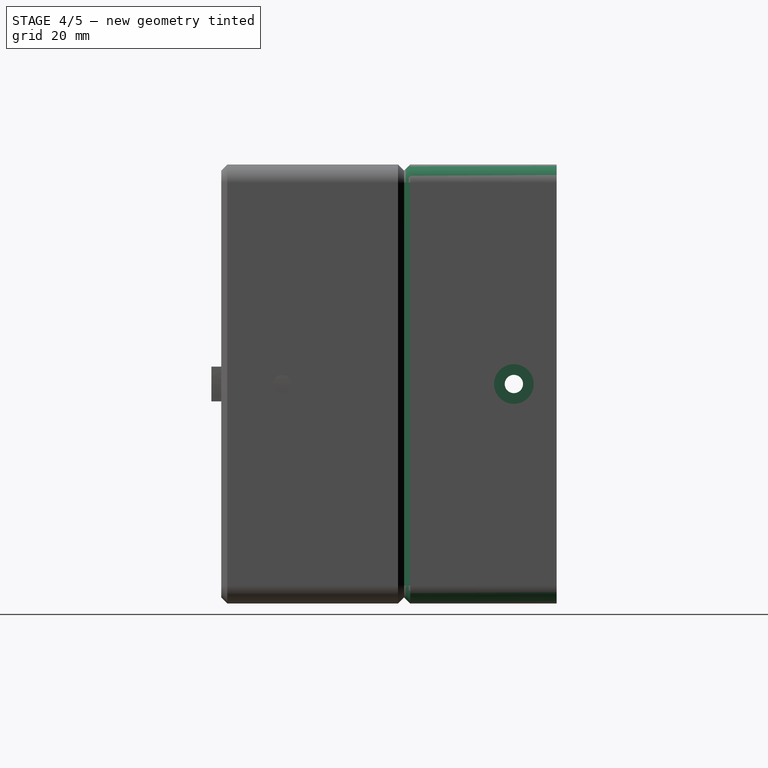
[diagram: stage 4 of 5 — right view after this stage's code; geometry added in this stage tinted green]
FEATURE [Sketcher::SketchObject] Sketch024
  ExternalGeometry = -> [Pad007]
  FullyConstrained = true
  MapMode = 5
  Placement = pos=(0,25,-1e-16) rot=(-1,0,0;1.5708rad)
  Support = -> [Pad007]
  sketch-geometry (4):
    g0: LineSegment StartX=0 StartY=-36 StartZ=0 EndX=10 EndY=-36 EndZ=0
    g1: LineSegment StartX=10 StartY=-36 StartZ=0 EndX=10 EndY=36 EndZ=0
    g2: LineSegment StartX=10 StartY=36 StartZ=0 EndX=0 EndY=36 EndZ=0
    g3: LineSegment StartX=0 StartY=36 StartZ=0 EndX=0 EndY=-36 EndZ=0
  constraints (11):
    c: Coincident(g0,g1)
    c: Coincident(g1,g2)
    c: Coincident(g2,g3)
    c: Coincident(g3,g0)
    c: Horizontal(g0)
    c: Horizontal(g2)
    c: Vertical(g1)
    c: Vertical(g3)
    c: Coincident(g0,g-4)
    c: PointOnObject(g1,g-3)
    c: DistanceX(g2,g2) = 10
FEATURE [PartDesign::Pocket] Pocket010
  BaseFeature = -> Pad007
  Direction = (0,-1,-2e-16)
  Length = 10
  Length2 = 100
  Placement = pos=(0,0,0) rot=(1,0,0;1.5708rad)
  Profile = -> Sketch024
  Refine = true
  Type = 0
FEATURE [Sketcher::SketchObject] Sketch025
  FullyConstrained = true
  MapMode = 5
  Placement = pos=(40,0,0) rot=(0.707107,0,0.707107;3.14159rad)
  Support = -> [Pocket010]
  sketch-geometry (1):
    g0: Circle CenterX=0 CenterY=-18 CenterZ=0 NormalX=0 NormalY=0 NormalZ=1 AngleXU=0 Radius=1.5
  constraints (3):
    c: PointOnObject(g0,g-2)
    c: DistanceY(g0,g-1) = 18
    c: Radius(g0) = 1.5
FEATURE [PartDesign::Pocket] Pocket011
  BaseFeature = -> Pocket010
  Direction = (-1,0,-2e-16)
  Length = 5
  Length2 = 100
  Placement = pos=(0,0,0) rot=(1,0,0;1.5708rad)
  Profile = -> Sketch025
  Type = 1
FEATURE [Sketcher::SketchObject] Sketch026
  ExternalGeometry = -> [Pocket011]
  FullyConstrained = true
  MapMode = 5
  Placement = pos=(40,0,0) rot=(0.707107,0,0.707107;3.14159rad)
  Support = -> [Pocket011]
  sketch-geometry (1):
    g0: Circle CenterX=0 CenterY=-18 CenterZ=0 NormalX=0 NormalY=0 NormalZ=1 AngleXU=0 Radius=3.25
  constraints (2):
    c: Coincident(g0,g-3)
    c: Radius(g0) = 3.25
FEATURE [PartDesign::Pocket] Pocket012
  BaseFeature = -> Pocket011
  Direction = (-1,0,-2e-16)
  Length = 2.5
  Length2 = 100
  Placement = pos=(0,0,0) rot=(1,0,0;1.5708rad)
  Profile = -> Sketch026
  Type = 0
FEATURE [PartDesign::Body] Body003  label="back-tunel"
  Group = -> [Sketch015,Pad004,Sketch016,Pocket006,Sketch017,Pad005,Sketch018,Pocket007,Sketch019,Pocket008,Sketch020,Pad006,DatumPlane,Sketch027,Pocket013]
  Origin = -> Origin003
  Placement = pos=(0,-25,0) rot=(0,0,1;0rad)
  Tip = -> Pocket013
FEATURE [PartDesign::Fillet] Fillet
  Base = -> Pocket012 [Edge2,Edge12]
  BaseFeature = -> Pocket012
  Placement = pos=(0,0,0) rot=(1,0,0;1.5708rad)
  Radius = 3
  SupportTransform = false
  UseAllEdges = false
FEATURE [Sketcher::SketchObject] Sketch045
  FullyConstrained = true
  MapMode = 5
  Placement = pos=(0,0,0) rot=(1,0,0;1.5708rad)
  Support = -> [XZ_Plane005]
  expr: Constraints[1] = <<args>>.inner_radius
  sketch-geometry (1):
    g0: Circle CenterX=0 CenterY=0 CenterZ=0 NormalX=0 NormalY=0 NormalZ=1 AngleXU=0 Radius=32.5
  constraints (2):
    c: Coincident(g0,g-1)
    c: Radius(g0) = 32.5
FEATURE [PartDesign::Pad] Pad010
  Direction = (0,-1,2e-16)
  Length = 27
  Length2 = 10
  Placement = pos=(0,0,0) rot=(1,0,0;1.5708rad)
  Profile = -> Sketch045
  ReferenceAxis = -> Sketch045 [N_Axis]
  Type = 0
FEATURE [Sketcher::SketchObject] Sketch046
  FullyConstrained = true
  MapMode = 5
  Placement = pos=(0,-27,1.19e-14) rot=(1,0,0;1.5708rad)
  Support = -> [Pad010]
  sketch-geometry (1):
    g0: Circle CenterX=0 CenterY=0 CenterZ=0 NormalX=0 NormalY=0 NormalZ=1 AngleXU=0 Radius=22.65
  constraints (2):
    c: Coincident(g0,g-1)
    c: Radius(g0) = 22.65
FEATURE [PartDesign::Pocket] Pocket030
  BaseFeature = -> Pad010
  Direction = (0,1,-2e-16)
  Length = 25
  Length2 = 5
  Placement = pos=(0,0,0) rot=(1,0,0;1.5708rad)
  Profile = -> Sketch046
  ReferenceAxis = -> Sketch046 [N_Axis]
  Type = 0
FEATURE [Sketcher::SketchObject] Sketch047
  FullyConstrained = true
  MapMode = 5
  Placement = pos=(0,-27,1.19e-14) rot=(1,0,0;1.5708rad)
  Support = -> [Pocket030]
  sketch-geometry (1):
    g0: Circle CenterX=0 CenterY=0 CenterZ=0 NormalX=0 NormalY=0 NormalZ=1 AngleXU=0 Radius=30
  constraints (2):
    c: Coincident(g0,g-1)
    c: Radius(g0) = 30
FEATURE [PartDesign::Pocket] Pocket031
  BaseFeature = -> Pocket030
  Direction = (0,1,-2e-16)
  Length = 22
  Length2 = 5
  Placement = pos=(0,0,0) rot=(1,0,0;1.5708rad)
  Profile = -> Sketch047
  ReferenceAxis = -> Sketch047 [N_Axis]
  Type = 0
FEATURE [Sketcher::SketchObject] Sketch048
  FullyConstrained = true
  MapMode = 5
  Placement = pos=(0,-2,8e-16) rot=(1,0,0;1.5708rad)
  Support = -> [Pocket031]
  sketch-geometry (1):
    g0: Circle CenterX=0 CenterY=0 CenterZ=0 NormalX=0 NormalY=0 NormalZ=1 AngleXU=0 Radius=20.5
  constraints (2):
    c: Coincident(g0,g-1)
    c: Radius(g0) = 20.5
FEATURE [PartDesign::Pocket] Pocket032
  BaseFeature = -> Pocket031
  Direction = (0,1,-2e-16)
  Length = 5
  Length2 = 5
  Placement = pos=(0,0,0) rot=(1,0,0;1.5708rad)
  Profile = -> Sketch048
  ReferenceAxis = -> Sketch048 [N_Axis]
  Type = 1
FEATURE [Sketcher::SketchObject] Sketch059
  ExternalGeometry = -> [Pocket032]
  FullyConstrained = true
  MapMode = 5
  Placement = pos=(0,0,0) rot=(-1,0,0;1.5708rad)
  Support = -> [Pocket032]
  sketch-geometry (4):
    g0: ArcOfCircle CenterX=0 CenterY=0 CenterZ=0 NormalX=0 NormalY=0 NormalZ=1 AngleXU=0 Radius=30 StartAngle=6.18302 EndAngle=6.38335
    g1: ArcOfCircle CenterX=0 CenterY=0 CenterZ=0 NormalX=0 NormalY=0 NormalZ=1 AngleXU=0 Radius=32.5 StartAngle=6.19075 EndAngle=6.37562
    g2: LineSegment StartX=29.8496 StartY=3 StartZ=0 EndX=32.3612 EndY=3 EndZ=0
    g3: LineSegment StartX=29.8496 StartY=-3 StartZ=0 EndX=32.3612 EndY=-3 EndZ=0
  constraints (12):
    c: Coincident(g0,g-3)
    c: Coincident(g1,g0)
    c: Coincident(g2,g0)
    c: Coincident(g2,g1)
    c: Coincident(g3,g0)
    c: Coincident(g3,g1)
    c: Horizontal(g2)
    c: Horizontal(g3)
    c: Equal(g-3,g1)
    c: DistanceY(g0,g0) = 3
    c: DistanceY(g0,g0) = 3
    c: Radius(g0) = 30
FEATURE [PartDesign::Pocket] Pocket037
  BaseFeature = -> Pocket032
  Direction = (0,-1,2e-16)
  Length = 2
  Length2 = 5
  Placement = pos=(0,0,0) rot=(1,0,0;1.5708rad)
  Profile = -> Sketch059
  ReferenceAxis = -> Sketch059 [N_Axis]
  Type = 0
FEATURE [PartDesign::Chamfer] Chamfer006
  Angle = 45
  Base = -> Pocket037 [Edge5]
  BaseFeature = -> Pocket037
  ChamferType = 0
  FlipDirection = false
  Placement = pos=(0,0,0) rot=(1,0,0;1.5708rad)
  Size = 2
  Size2 = 1
  SupportTransform = false
  UseAllEdges = false
FEATURE [PartDesign::Pocket] Pocket039
  BaseFeature = -> Chamfer006
  Direction = (0,1,-2e-16)
  Length = 2
  Length2 = 5
  Placement = pos=(0,0,0) rot=(1,0,0;1.5708rad)
  Profile = -> Chamfer006 [Face3]
  Type = 0
FEATURE [Sketcher::SketchObject] Sketch063
  ExternalGeometry = -> [Pocket039]
  FullyConstrained = true
  MapMode = 5
  Placement = pos=(0,-25,1.11e-14) rot=(1,0,0;1.5708rad)
  Support = -> [Pocket039]
  sketch-geometry (5):
    g0: ArcOfCircle CenterX=0 CenterY=0 CenterZ=0 NormalX=0 NormalY=0 NormalZ=1 AngleXU=0 Radius=30 StartAngle=1.45386 EndAngle=1.68773
    g1: ArcOfCircle CenterX=0 CenterY=26.5 CenterZ=0 NormalX=0 NormalY=0 NormalZ=1 AngleXU=0 Radius=3.5 StartAngle=3.14159 EndAngle=6.28319
    g2: LineSegment StartX=-3.5 StartY=26.5 StartZ=0 EndX=-3.5 EndY=29.7951 EndZ=0
    g3: LineSegment StartX=3.5 StartY=26.5 StartZ=0 EndX=3.5 EndY=29.7951 EndZ=0
    g4: Circle CenterX=0 CenterY=26.5 CenterZ=0 NormalX=0 NormalY=0 NormalZ=1 AngleXU=0 Radius=1
  constraints (15):
    c: Coincident(g0,g-3)
    c: PointOnObject(g1,g-2)
    c: Horizontal(g1,g1)
    c: Horizontal(g1,g1)
    c: Coincident(g2,g1)
    c: Coincident(g2,g0)
    c: Coincident(g3,g1)
    c: Coincident(g3,g0)
    c: Vertical(g2)
    c: Vertical(g3)
    c: Coincident(g4,g1)
    c: Radius(g4) = 1
    c: Equal(g0,g-3)
    c: DistanceY(g0,g1) = 26.5
    c: Radius(g1) = 3.5
FEATURE [PartDesign::Pad] Pad016
  BaseFeature = -> Pocket039
  Direction = (0,-1,2e-16)
  Length = 10
  Length2 = 10
  Placement = pos=(0,0,0) rot=(1,0,0;1.5708rad)
  Profile = -> Sketch063
  ReferenceAxis = -> Sketch063 [N_Axis]
  Type = 3
  UpToFace = -> Pocket039 [Face13]
FEATURE [PartDesign::Pocket] Pocket044
  BaseFeature = -> Fillet
  Direction = (0,-1,-2e-16)
  Length = 3
  Length2 = 5
  Placement = pos=(0,0,0) rot=(1,0,0;1.5708rad)
  Profile = -> Fillet [Face6]
  Refine = true
  Type = 0
FEATURE [Sketcher::SketchObject] Sketch069
  ExternalGeometry = -> [Pocket044]
  FullyConstrained = true
  MapMode = 5
  Placement = pos=(0,25,-1e-16) rot=(-1,0,0;1.5708rad)
  Support = -> [Pocket044]
  sketch-geometry (6):
    g0: ArcOfCircle CenterX=0 CenterY=0 CenterZ=0 NormalX=0 NormalY=0 NormalZ=1 AngleXU=0 Radius=36.4005 StartAngle=0.2783 EndAngle=1.0191
    g1: ArcOfCircle CenterX=0 CenterY=0 CenterZ=0 NormalX=0 NormalY=0 NormalZ=1 AngleXU=0 Radius=36.4005 StartAngle=5.26409 EndAngle=6.00489
    g2: LineSegment StartX=19.0788 StartY=31 StartZ=0 EndX=35 EndY=31 EndZ=0
    g3: LineSegment StartX=35 StartY=10 StartZ=0 EndX=35 EndY=31 EndZ=0
    g4: LineSegment StartX=35 StartY=-10 StartZ=0 EndX=35 EndY=-31 EndZ=0
    g5: LineSegment StartX=19.0788 StartY=-31 StartZ=0 EndX=35 EndY=-31 EndZ=0
  constraints (18):
    c: Coincident(g0,g-1)
    c: Coincident(g1,g0)
    c: Vertical(g1,g0)
    c: Vertical(g0,g1)
    c: Coincident(g2,g0)
    c: Horizontal(g2)
    c: Coincident(g3,g0)
    c: Coincident(g3,g2)
    c: Vertical(g3)
    c: Coincident(g4,g1)
    c: Vertical(g4)
    c: Coincident(g5,g1)
    c: Coincident(g5,g4)
    c: Horizontal(g5)
    c: DistanceY(g-5,g4) = 5
    c: DistanceY(g0,g0) = 10
    c: DistanceY(g1,g0) = 10
    c: DistanceX(g2,g-4) = 5
FEATURE [PartDesign::Pocket] Pocket045
  BaseFeature = -> Pocket044
  Direction = (0,-1,-2e-16)
  Length = 5
  Length2 = 5
  Placement = pos=(0,0,0) rot=(1,0,0;1.5708rad)
  Profile = -> Sketch069
  ReferenceAxis = -> Sketch069 [N_Axis]
  Type = 1
FEATURE [PartDesign::Fillet] Fillet008
  Base = -> Pocket045 [Edge58,Edge57,Edge59,Edge54,Edge56,Edge55]
  BaseFeature = -> Pocket045
  Placement = pos=(0,0,0) rot=(1,0,0;1.5708rad)
  Radius = 1
  SupportTransform = false
  UseAllEdges = false
FEATURE [PartDesign::Chamfer] Chamfer
  Angle = 45
  Base = -> Fillet008 [Face22,Edge59,Edge52,Edge60,Edge41,Edge34]
  BaseFeature = -> Fillet008
  ChamferType = 0
  FlipDirection = false
  Placement = pos=(0,0,0) rot=(1,0,0;1.5708rad)
  Size = 1
  Size2 = 1
  SupportTransform = false
  UseAllEdges = false
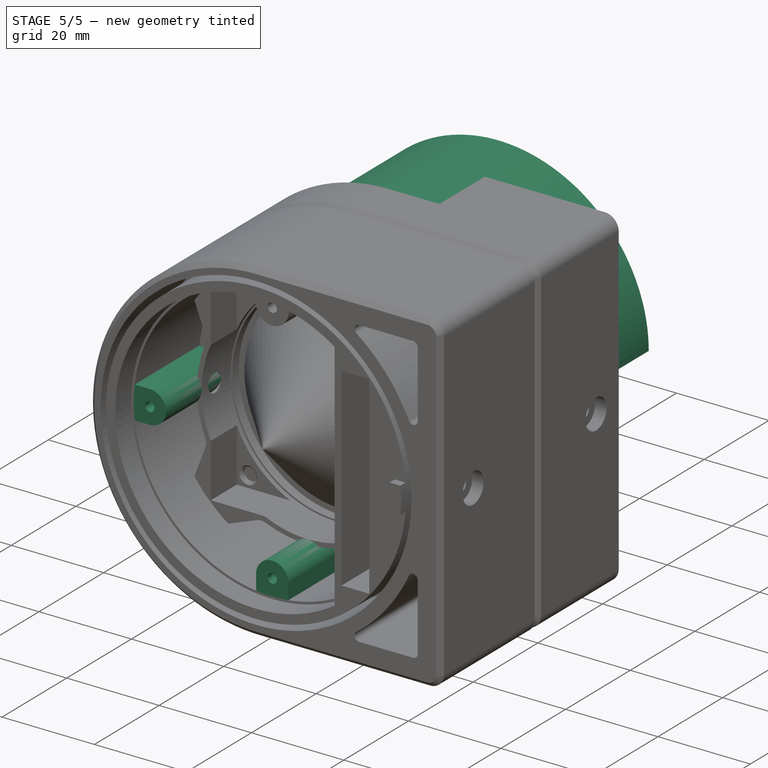
[diagram: stage 5 of 5 — iso view after this stage's code; geometry added in this stage tinted green]
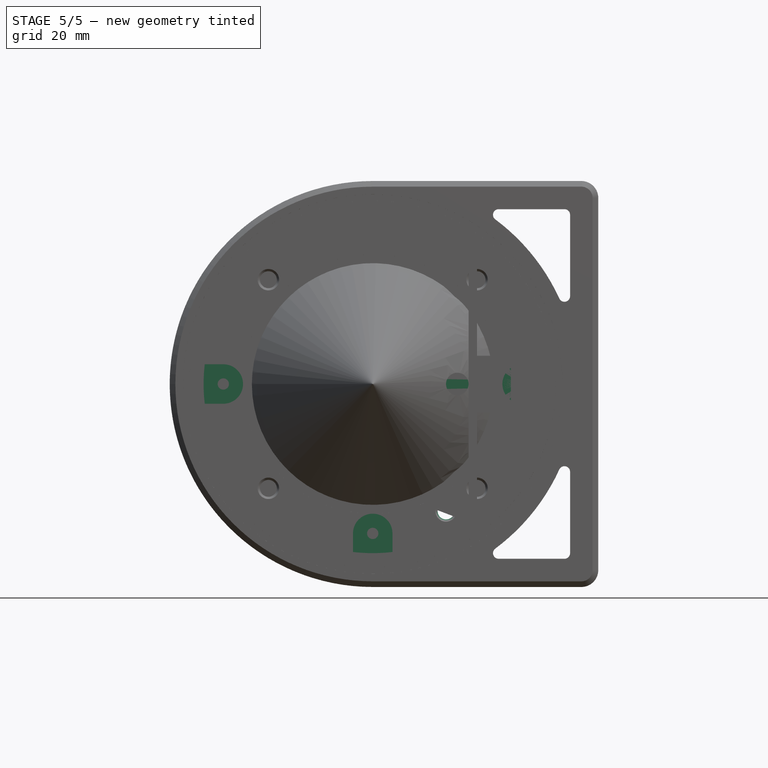
[diagram: stage 5 of 5 — front view after this stage's code; geometry added in this stage tinted green]
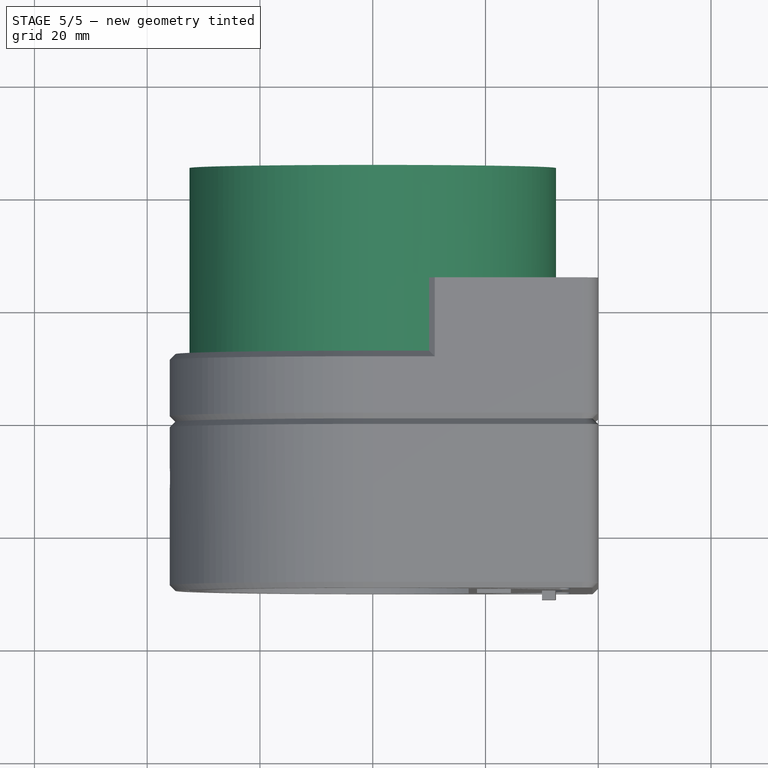
[diagram: stage 5 of 5 — top view after this stage's code; geometry added in this stage tinted green]
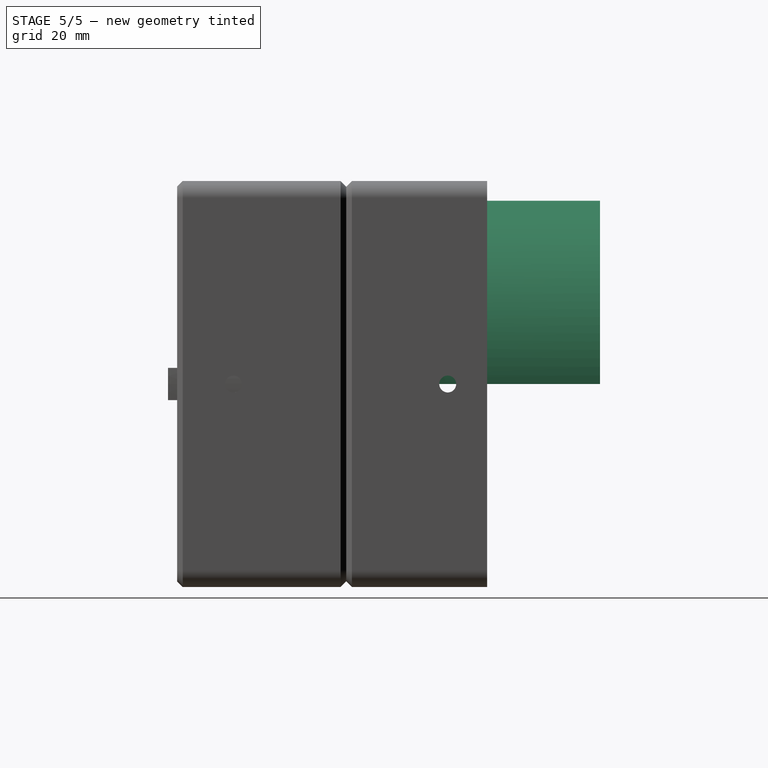
[diagram: stage 5 of 5 — right view after this stage's code; geometry added in this stage tinted green]
FEATURE [Spreadsheet::Sheet] Spreadsheet  label="args"
  cells = A3='body_radius; B3(body_radius)=33.5; A4='back_ring_radius; B4(back_ring_radius)=34.5; A5='back_ring_width; B5(back_ring_width)=2.5; A6='front_ring_radius; B6(front_ring_radius)=35; A7='front_ring_width; B7(front_ring_width)=4; A8='inner_radius; B8(inner_radius)=32.5
FEATURE [Sketcher::SketchObject] Sketch015
  FullyConstrained = true
  MapMode = 5
  Support = -> [XY_Plane003]
  expr: Constraints[10] = <<args>>.inner_radius
  expr: Constraints[9] = <<args>>.inner_radius
  sketch-geometry (4):
    g0: LineSegment StartX=-32.5 StartY=-10 StartZ=0 EndX=32.5 EndY=-10 EndZ=0
    g1: LineSegment StartX=32.5 StartY=-10 StartZ=0 EndX=32.5 EndY=45 EndZ=0
    g2: LineSegment StartX=32.5 StartY=45 StartZ=0 EndX=-32.5 EndY=45 EndZ=0
    g3: LineSegment StartX=-32.5 StartY=45 StartZ=0 EndX=-32.5 EndY=-10 EndZ=0
  constraints (12):
    c: Coincident(g0,g1)
    c: Coincident(g1,g2)
    c: Coincident(g2,g3)
    c: Coincident(g3,g0)
    c: Horizontal(g0)
    c: Horizontal(g2)
    c: Vertical(g1)
    c: Vertical(g3)
    c: DistanceY(g0,g-1) = 10
    c: DistanceX(g-1,g0) = 32.5
    c: DistanceX(g0,g-1) = 32.5
    c: DistanceY(g1,g1) = 55
FEATURE [PartDesign::Pad] Pad004
  Direction = (0,0,1)
  Length = 32.5
  Length2 = 100
  Profile = -> Sketch015
  Type = 0
  expr: Length = <<args>>.inner_radius
FEATURE [Sketcher::SketchObject] Sketch016
  ExternalGeometry = -> [Pad004]
  FullyConstrained = true
  MapMode = 5
  Placement = pos=(0,0,32.5) rot=(0,0,1;0rad)
  Support = -> [Pad004]
  sketch-geometry (18):
    g0: ArcOfCircle CenterX=-19 CenterY=45 CenterZ=0 NormalX=0 NormalY=0 NormalZ=1 AngleXU=0 Radius=10 StartAngle=3.14159 EndAngle=4.71239
    g1: ArcOfCircle CenterX=19 CenterY=29 CenterZ=0 NormalX=0 NormalY=0 NormalZ=1 AngleXU=0 Radius=10 StartAngle=4.71239 EndAngle=6.28319
    g2: ArcOfCircle CenterX=-19 CenterY=19 CenterZ=0 NormalX=0 NormalY=0 NormalZ=1 AngleXU=0 Radius=10 StartAngle=1.5708 EndAngle=3.14159
    g3: ArcOfCircle CenterX=-19 CenterY=13 CenterZ=0 NormalX=0 NormalY=0 NormalZ=1 AngleXU=0 Radius=10 StartAngle=3.14159 EndAngle=4.71239
    g4: ArcOfCircle CenterX=19 CenterY=3 CenterZ=0 NormalX=0 NormalY=0 NormalZ=1 AngleXU=0 Radius=10 StartAngle=0 EndAngle=1.5708
    g5: ArcOfCircle CenterX=-3 CenterY=0 CenterZ=0 NormalX=0 NormalY=0 NormalZ=1 AngleXU=0 Radius=3 StartAngle=0 EndAngle=1.5708
    g6: LineSegment StartX=-19 StartY=3 StartZ=0 EndX=-3 EndY=3 EndZ=0
    g7: LineSegment StartX=-29 StartY=13 StartZ=0 EndX=-29 EndY=19 EndZ=0
    g8: LineSegment StartX=29 StartY=45 StartZ=0 EndX=29 EndY=29 EndZ=0
    g9: LineSegment StartX=29 StartY=3 StartZ=0 EndX=29 EndY=0 EndZ=0
    g10: LineSegment StartX=29 StartY=0 StartZ=0 EndX=0 EndY=0 EndZ=0
    g11: ArcOfCircle CenterX=-11.5 CenterY=16 CenterZ=0 NormalX=0 NormalY=0 NormalZ=1 AngleXU=0 Radius=3 StartAngle=1.5708 EndAngle=4.71239
    g12: ArcOfCircle CenterX=11.5 CenterY=32 CenterZ=0 NormalX=0 NormalY=0 NormalZ=1 AngleXU=0 Radius=3 StartAngle=4.71239 EndAngle=7.85398
    g13: LineSegment StartX=19 StartY=13 StartZ=0 EndX=-11.5 EndY=13 EndZ=0
    g14: LineSegment StartX=-11.5 StartY=19 StartZ=0 EndX=19 EndY=19 EndZ=0
    g15: LineSegment StartX=-19 StartY=29 StartZ=0 EndX=11.5 EndY=29 EndZ=0
    g16: LineSegment StartX=-19 StartY=35 StartZ=0 EndX=11.5 EndY=35 EndZ=0
    g17: LineSegment StartX=-29 StartY=45 StartZ=0 EndX=29 EndY=45 EndZ=0
  constraints (61):
    c: Vertical(g0,g0)
    c: Vertical(g0,g2)
    c: Vertical(g2,g2)
    c: Vertical(g2,g3)
    c: Vertical(g3,g3)
    c: Horizontal(g3,g3)
    c: Horizontal(g2,g2)
    c: Horizontal(g0,g0)
    c: Vertical(g1,g1)
    c: Vertical(g1,g4)
    c: Vertical(g4,g4)
    c: Horizontal(g4,g4)
    c: Horizontal(g1,g1)
    c: Equal(g3,g4)
    c: Equal(g4,g1)
    c: Equal(g1,g2)
    c: Equal(g2,g0)
    c: PointOnObject(g5,g-1)
    c: Coincident(g5,g-1)
    c: Vertical(g5,g5)
    c: Coincident(g6,g3)
    c: Coincident(g6,g5)
    c: Coincident(g7,g3)
    c: Coincident(g7,g2)
    c: Coincident(g8,g1)
    c: Coincident(g9,g4)
    c: PointOnObject(g9,g-1)
    c: Vertical(g9)
    c: Coincident(g10,g9)
    c: Coincident(g10,g5)
    c: Vertical(g11,g11)
    c: Vertical(g11,g11)
    c: Vertical(g12,g12)
    c: Coincident(g13,g4)
    c: Coincident(g13,g11)
    c: Coincident(g14,g11)
    c: Coincident(g14,g1)
    c: Horizontal(g14)
    c: Coincident(g15,g2)
    c: Horizontal(g15)
    c: Coincident(g16,g0)
    c: Coincident(g16,g12)
    c: Horizontal(g16)
    c: Horizontal(g13)
    c: Coincident(g15,g12)
    c: Equal(g11,g12)
    c: Radius(g3) = 10
    c: Horizontal(g6)
    c: Vertical(g8)
    c: DistanceX(g-3,g3) = 13.5
    c: DistanceX(g4,g-3) = 13.5
    c: Horizontal(g3,g11)
    c: Horizontal(g12,g1)
    c: Radius(g11) = 3
    c: Vertical(g12,g12)
    c: Coincident(g17,g0)
    c: Coincident(g17,g8)
    c: Horizontal(g17)
    c: DistanceY(g5,g5) = 3
    c: DistanceX(g12,g1) = 7.5
    c: DistanceX(g3,g11) = 7.5
FEATURE [PartDesign::Pocket] Pocket006
  BaseFeature = -> Pad004
  Direction = (0,0,-1)
  Length = 5
  Length2 = 100
  Profile = -> Sketch016
  Type = 1
FEATURE [Sketcher::SketchObject] Sketch017
  ExternalGeometry = -> [Pocket006]
  FullyConstrained = true
  MapMode = 5
  Placement = pos=(0,-10,0) rot=(1,0,0;1.5708rad)
  Support = -> [Pocket006]
  sketch-geometry (4):
    g0: ArcOfCircle CenterX=0 CenterY=0 CenterZ=0 NormalX=0 NormalY=0 NormalZ=1 AngleXU=0 Radius=32.5 StartAngle=3e-16 EndAngle=3.14159
    g1: ArcOfCircle CenterX=0 CenterY=0 CenterZ=0 NormalX=0 NormalY=0 NormalZ=1 AngleXU=0 Radius=29.5 StartAngle=1.2e-15 EndAngle=3.14159
    g2: LineSegment StartX=-32.5 StartY=1.194e-13 StartZ=0 EndX=-29.5 EndY=1.194e-13 EndZ=0
    g3: LineSegment StartX=29.5 StartY=3.61e-14 StartZ=0 EndX=32.5 EndY=0 EndZ=0
  constraints (11):
    c: Coincident(g0,g-1)
    c: Coincident(g0,g-3)
    c: Coincident(g0,g-4)
    c: Coincident(g1,g0)
    c: PointOnObject(g1,g-1)
    c: Coincident(g2,g0)
    c: Coincident(g2,g1)
    c: Horizontal(g2)
    c: Coincident(g3,g1)
    c: Coincident(g3,g0)
    c: DistanceX(g3,g3) = 3
FEATURE [PartDesign::Pad] Pad005
  BaseFeature = -> Pocket006
  Direction = (0,-1,2e-16)
  Length = 10
  Length2 = 100
  Profile = -> Sketch017
  Refine = true
  Type = 3
  UpToFace = -> Pocket006 [Face7]
FEATURE [Sketcher::SketchObject] Sketch018
  ExternalGeometry = -> [Pad005]
  FullyConstrained = true
  MapMode = 5
  Placement = pos=(0,0,0) rot=(1,0,0;3.14159rad)
  Support = -> [Pad005]
  sketch-geometry (4):
    g0: LineSegment StartX=-32.5 StartY=10 StartZ=0 EndX=32.5 EndY=10 EndZ=0
    g1: LineSegment StartX=32.5 StartY=10 StartZ=0 EndX=32.5 EndY=0 EndZ=0
    g2: LineSegment StartX=32.5 StartY=0 StartZ=0 EndX=-32.5 EndY=0 EndZ=0
    g3: LineSegment StartX=-32.5 StartY=0 StartZ=0 EndX=-32.5 EndY=10 EndZ=0
  constraints (11):
    c: Coincident(g0,g1)
    c: Coincident(g1,g2)
    c: Coincident(g2,g3)
    c: Coincident(g3,g0)
    c: Horizontal(g0)
    c: Horizontal(g2)
    c: Vertical(g1)
    c: Vertical(g3)
    c: Coincident(g0,g-3)
    c: Vertical(g0,g-4)
    c: Horizontal(g-1,g1)
FEATURE [PartDesign::Pocket] Pocket007
  BaseFeature = -> Pad005
  Direction = (0,0,1)
  Length = 5
  Length2 = 100
  Profile = -> Sketch018
  Type = 1
FEATURE [Sketcher::SketchObject] Sketch019
  ExternalGeometry = -> [Pocket007]
  FullyConstrained = true
  MapMode = 5
  Placement = pos=(0,0,0) rot=(1,0,0;1.5708rad)
  Support = -> [Pocket007]
  sketch-geometry (2):
    g0: Circle CenterX=0 CenterY=0 CenterZ=0 NormalX=0 NormalY=0 NormalZ=1 AngleXU=0 Radius=32.5
    g1: Circle CenterX=0 CenterY=0 CenterZ=0 NormalX=0 NormalY=0 NormalZ=1 AngleXU=0 Radius=50
  constraints (4):
    c: Coincident(g0,g-1)
    c: Coincident(g1,g0)
    c: Equal(g0,g-3)
    c: Radius(g1) = 50
FEATURE [PartDesign::Pocket] Pocket008
  BaseFeature = -> Pocket007
  Direction = (0,1,-2e-16)
  Length = 5
  Length2 = 100
  Profile = -> Sketch019
  Refine = true
  Type = 1
FEATURE [Sketcher::SketchObject] Sketch020
  ExternalGeometry = -> [Pocket008]
  FullyConstrained = true
  MapMode = 5
  Placement = pos=(0,0,0) rot=(1,0,0;1.5708rad)
  Support = -> [Pocket008]
  sketch-geometry (4):
    g0: ArcOfCircle CenterX=0 CenterY=0 CenterZ=0 NormalX=0 NormalY=0 NormalZ=1 AngleXU=0 Radius=32.5 StartAngle=0 EndAngle=3.14159
    g1: ArcOfCircle CenterX=0 CenterY=0 CenterZ=0 NormalX=0 NormalY=0 NormalZ=1 AngleXU=0 Radius=33.5 StartAngle=0 EndAngle=3.14159
    g2: LineSegment StartX=-33.5 StartY=4.1e-15 StartZ=0 EndX=-32.5 EndY=4.1e-15 EndZ=0
    g3: LineSegment StartX=32.5 StartY=0 StartZ=0 EndX=33.5 EndY=0 EndZ=0
  constraints (12):
    c: Coincident(g0,g-1)
    c: PointOnObject(g0,g-1)
    c: PointOnObject(g0,g-1)
    c: Coincident(g1,g0)
    c: PointOnObject(g1,g-1)
    c: Coincident(g2,g1)
    c: Coincident(g2,g0)
    c: Horizontal(g2)
    c: Coincident(g3,g0)
    c: Coincident(g3,g1)
    c: Equal(g0,g-3)
    c: Radius(g1) = 33.5
FEATURE [PartDesign::Pad] Pad006
  BaseFeature = -> Pocket008
  Direction = (0,-1,2e-16)
  Length = 2
  Length2 = 100
  Profile = -> Sketch020
  Refine = true
  Reversed = true
  Type = 0
FEATURE [PartDesign::Plane] DatumPlane
  AttachmentOffset = pos=(0,0,34) rot=(0,0,1;0rad)
  Length = 82.7859
  MapMode = 5
  Placement = pos=(34,-7.5e-15,7.5e-15) rot=(0.57735,0.57735,0.57735;2.0944rad)
  ResizeMode = 0
  Support = -> [YZ_Plane003]
  Width = 71.1715
FEATURE [Sketcher::SketchObject] Sketch027
  FullyConstrained = true
  MapMode = 5
  Placement = pos=(34,-7.5e-15,7.5e-15) rot=(0.57735,0.57735,0.57735;2.0944rad)
  Support = -> [DatumPlane]
  sketch-geometry (1):
    g0: Circle CenterX=16 CenterY=0 CenterZ=0 NormalX=0 NormalY=0 NormalZ=1 AngleXU=0 Radius=1.7
  constraints (3):
    c: PointOnObject(g0,g-1)
    c: DistanceX(g-1,g0) = 16
    c: Radius(g0) = 1.7
FEATURE [PartDesign::Pocket] Pocket013
  BaseFeature = -> Pad006
  Direction = (-1,1e-16,-1e-16)
  Length = 10
  Length2 = 100
  Profile = -> Sketch027
  Type = 0
FEATURE [PartDesign::PolarPattern] PolarPattern
  Angle = 360
  Axis = -> Sketch063 [N_Axis]
  BaseFeature = -> Pad016
  Occurrences = 4
  Originals = -> [Pad016]
  Placement = pos=(0,0,0) rot=(1,0,0;1.5708rad)
FEATURE [PartDesign::Chamfer] Chamfer008
  Angle = 45
  Base = -> PolarPattern [Edge18,Edge4]
  BaseFeature = -> PolarPattern
  ChamferType = 0
  FlipDirection = false
  Placement = pos=(0,0,0) rot=(1,0,0;1.5708rad)
  Size = 0.4
  Size2 = 1
  SupportTransform = false
  UseAllEdges = false
FEATURE [Sketcher::SketchObject] Sketch064
  FullyConstrained = true
  MapMode = 5
  Placement = pos=(0,0,0) rot=(1,0,0;1.5708rad)
  Support = -> [XZ_Plane007]
  sketch-geometry (6):
    g0: Circle CenterX=0 CenterY=0 CenterZ=0 NormalX=0 NormalY=0 NormalZ=1 AngleXU=0 Radius=26.5
    g1: Circle CenterX=0 CenterY=26.5 CenterZ=0 NormalX=0 NormalY=0 NormalZ=1 AngleXU=0 Radius=1
    g2: Circle CenterX=-26.5 CenterY=0 CenterZ=0 NormalX=0 NormalY=0 NormalZ=1 AngleXU=0 Radius=1
    g3: Circle CenterX=26.5 CenterY=0 CenterZ=0 NormalX=0 NormalY=0 NormalZ=1 AngleXU=0 Radius=1
    g4: Circle CenterX=0 CenterY=-26.5 CenterZ=0 NormalX=0 NormalY=0 NormalZ=1 AngleXU=0 Radius=1
    g5: Circle CenterX=0 CenterY=0 CenterZ=0 NormalX=0 NormalY=0 NormalZ=1 AngleXU=0 Radius=32
  constraints (16):
    c: Coincident(g0,g-1)
    c: PointOnObject(g1,g0)
    c: PointOnObject(g2,g0)
    c: PointOnObject(g3,g0)
    c: PointOnObject(g4,g0)
    c: Vertical(g4,g0)
    c: Vertical(g0,g1)
    c: Horizontal(g2,g0)
    c: Horizontal(g0,g3)
    c: Equal(g2,g1)
    c: Equal(g1,g3)
    c: Equal(g3,g4)
    c: Radius(g1) = 1
    c: Radius(g0) = 26.5
    c: Coincident(g5,g0)
    c: Radius(g5) = 32
FEATURE [PartDesign::Pad] Pad017
  Direction = (0,-1,2e-16)
  Length = 2
  Length2 = 10
  Placement = pos=(0,0,0) rot=(1,0,0;1.5708rad)
  Profile = -> Sketch064
  ReferenceAxis = -> Sketch064 [N_Axis]
  Type = 0
FEATURE [Sketcher::SketchObject] Sketch065
  FullyConstrained = true
  MapMode = 5
  Placement = pos=(0,-2,9e-16) rot=(1,0,0;1.5708rad)
  Support = -> [Pad017]
  sketch-geometry (6):
    g0: ArcOfCircle CenterX=0 CenterY=0 CenterZ=0 NormalX=0 NormalY=0 NormalZ=1 AngleXU=0 Radius=27.5 StartAngle=1.74533 EndAngle=2.96706
    g1: ArcOfCircle CenterX=0 CenterY=0 CenterZ=0 NormalX=0 NormalY=0 NormalZ=1 AngleXU=0 Radius=7 StartAngle=1.74533 EndAngle=2.96706
    g2: LineSegment StartX=-4.77532 StartY=27.0822 StartZ=0 EndX=-1.21554 EndY=6.89365 EndZ=0
    g3: LineSegment StartX=-27.0822 StartY=4.77532 StartZ=0 EndX=-6.89365 EndY=1.21554 EndZ=0
    g4: LineSegment StartX=-6.89365 StartY=1.21554 StartZ=0 EndX=0 EndY=0 EndZ=0
    g5: LineSegment StartX=-1.21554 StartY=6.89365 StartZ=0 EndX=0 EndY=0 EndZ=0
  constraints (16):
    c: Coincident(g0,g-1)
    c: Coincident(g1,g0)
    c: Coincident(g2,g0)
    c: Coincident(g2,g1)
    c: Coincident(g3,g0)
    c: Coincident(g3,g1)
    c: Coincident(g4,g1)
    c: Coincident(g4,g0)
    c: Coincident(g5,g1)
    c: Coincident(g5,g0)
    c: Parallel(g3,g4)
    c: Parallel(g5,g2)
    c: Angle(g-2,g2) = 0.174533
    c: Angle(g-1,g3) = 2.96706
    c: Radius(g1) = 7
    c: Radius(g0) = 27.5
FEATURE [PartDesign::Pocket] Pocket040
  BaseFeature = -> Pad017
  Direction = (0,1,-2e-16)
  Length = 5
  Length2 = 5
  Placement = pos=(0,0,0) rot=(1,0,0;1.5708rad)
  Profile = -> Sketch065
  ReferenceAxis = -> Sketch065 [N_Axis]
  Type = 1
FEATURE [PartDesign::PolarPattern] PolarPattern001
  Angle = 360
  Axis = -> Sketch065 [N_Axis]
  BaseFeature = -> Pocket040
  Occurrences = 4
  Originals = -> [Pocket040]
  Placement = pos=(0,0,0) rot=(1,0,0;1.5708rad)
FEATURE [PartDesign::Fillet] Fillet006
  Base = -> PolarPattern001 [Edge52,Edge62,Edge56,Edge46,Edge44,Edge54,Edge60,Edge49,Edge50,Edge63,Edge61,Edge57,Edge55,Edge47,Edge51,Edge45]
  BaseFeature = -> PolarPattern001
  Placement = pos=(0,0,0) rot=(1,0,0;1.5708rad)
  Radius = 1
  SupportTransform = false
  UseAllEdges = false
FEATURE [PartDesign::Chamfer] Chamfer009
  Angle = 45
  Base = -> Fillet006 [Face39,Face1]
  BaseFeature = -> Fillet006
  ChamferType = 0
  FlipDirection = false
  Placement = pos=(0,0,0) rot=(1,0,0;1.5708rad)
  Size = 0.4
  Size2 = 1
  SupportTransform = false
  UseAllEdges = false
FEATURE [PartDesign::Body] Body007  label="speaker-support"
  Group = -> [Sketch064,Pad017,Sketch065,Pocket040,PolarPattern001,Fillet006,Chamfer009]
  Origin = -> Origin007
  Placement = pos=(0,51,0) rot=(0,0,1;0rad)
  Tip = -> Chamfer009
FEATURE [Sketcher::SketchObject] Sketch066
  FullyConstrained = true
  MapMode = 5
  Placement = pos=(0,0,0) rot=(-1,0,0;1.5708rad)
  Support = -> [Chamfer008]
  sketch-geometry (2):
    g0: Circle CenterX=13 CenterY=22.5167 CenterZ=0 NormalX=0 NormalY=0 NormalZ=1 AngleXU=0 Radius=1.5
    g1: LineSegment StartX=13 StartY=22.5167 StartZ=0 EndX=-1.8e-15 EndY=0 EndZ=0
  constraints (5):
    c: Radius(g0) = 1.5
    c: Coincident(g1,g0)
    c: Coincident(g1,g-1)
    c: Distance(g1) = 26
    c: Angle(g-1,g1) = 1.0472
FEATURE [PartDesign::Pocket] Pocket041
  BaseFeature = -> Chamfer008
  Direction = (0,-1,2e-16)
  Length = 5
  Length2 = 5
  Placement = pos=(0,0,0) rot=(1,0,0;1.5708rad)
  Profile = -> Sketch066
  ReferenceAxis = -> Sketch066 [N_Axis]
  Type = 1
FEATURE [PartDesign::Chamfer] Chamfer010
  Angle = 45
  Base = -> Pocket041 [Edge34,Edge66]
  BaseFeature = -> Pocket041
  ChamferType = 0
  FlipDirection = false
  Placement = pos=(0,0,0) rot=(1,0,0;1.5708rad)
  Size = 0.4
  Size2 = 1
  SupportTransform = false
  UseAllEdges = false
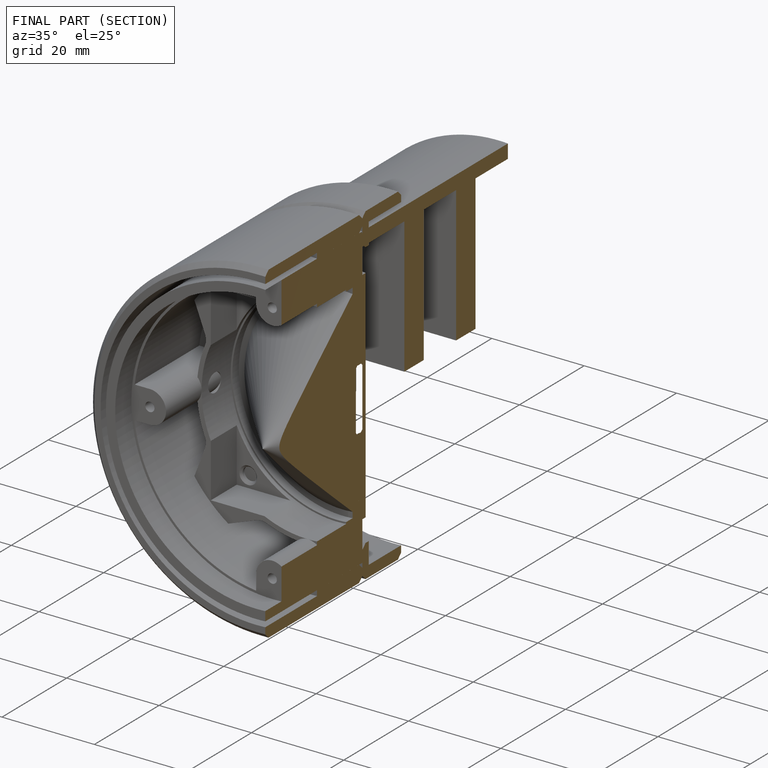
[diagram: finished part — half-section view (interior)]
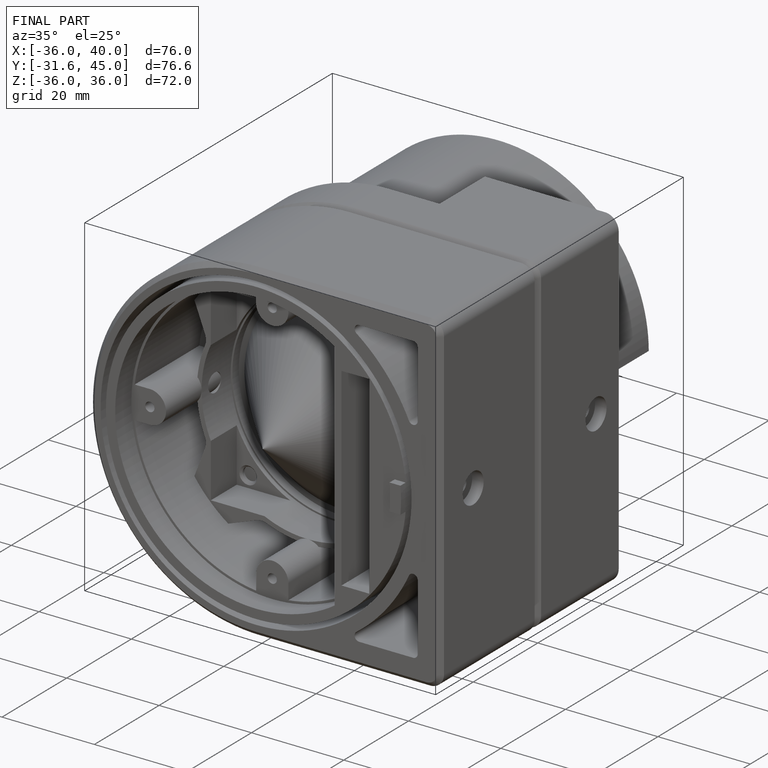
[diagram: finished part — iso view with bounding-box wireframe]
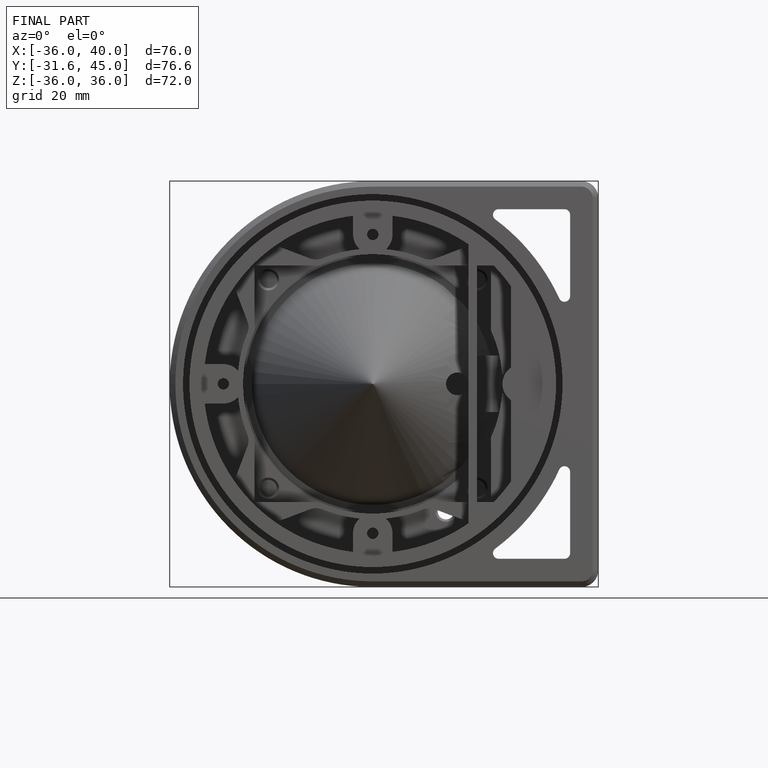
[diagram: finished part — front view with bounding-box wireframe]
